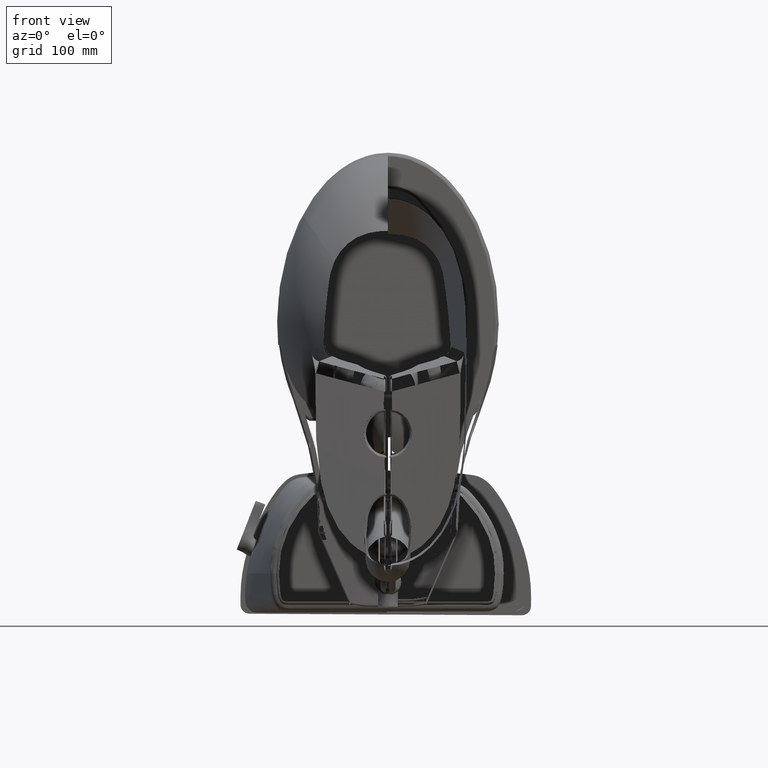
[diagram: clean part render]
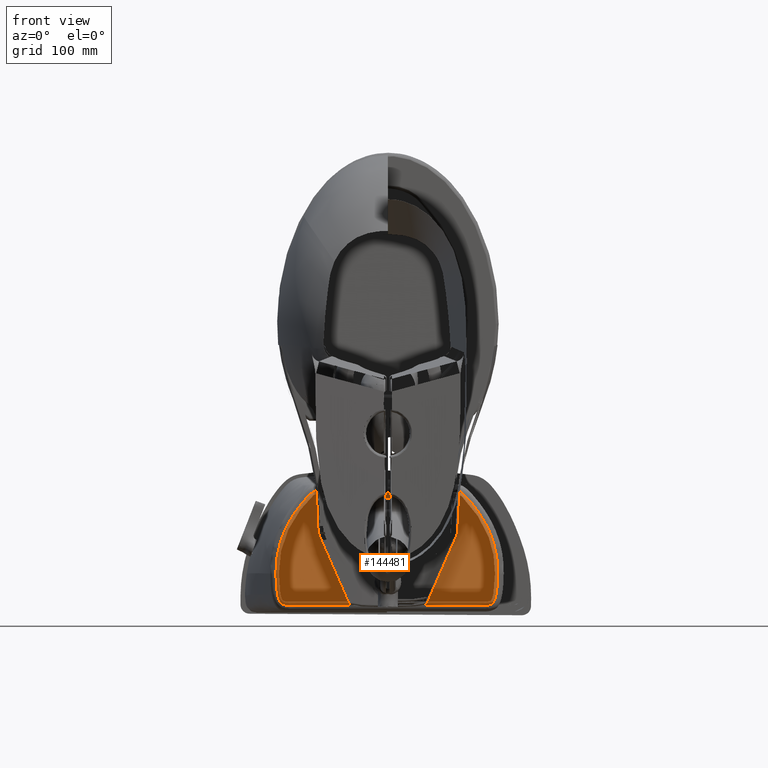
[diagram: same view with one face highlighted and labeled with its STEP entity id]
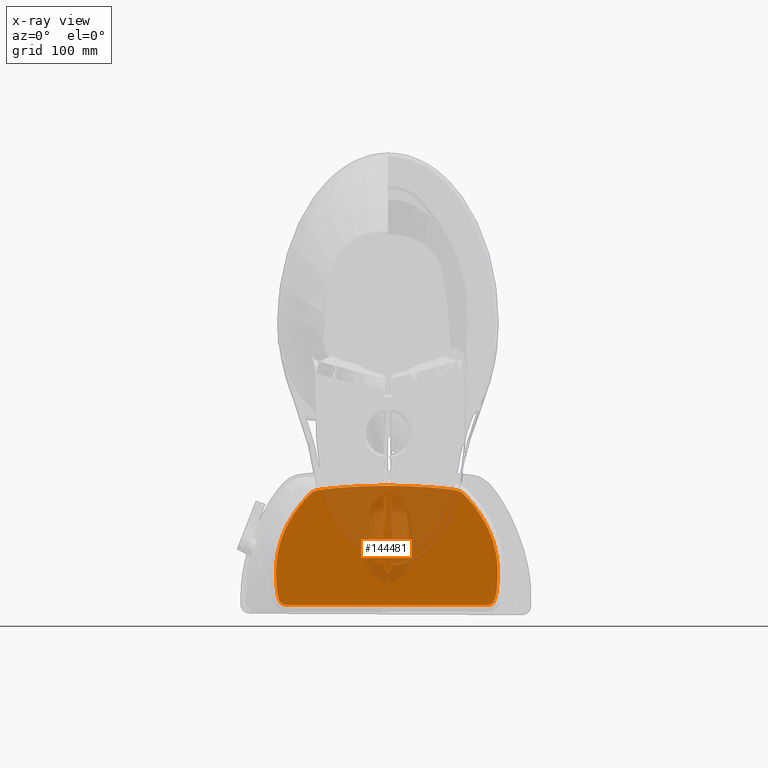
[diagram: x-ray of the same camera — body ghosted, the highlighted face saturated]
A machine part, front view. The second image highlights one B-rep face of the part: STEP entity #144481.
The next image is the same camera in x-ray: the body ghosted, the highlighted face saturated — about 29% of this face is hidden behind the body in this view.
In plain terms, the highlighted planar face has unit normal (0, 1, -0).
Its self-contained STEP definition (entity closure, byte-faithful):
#261 = CARTESIAN_POINT ( 'NONE',  ( 4.823365712351179700, 9.587763995629135400, 17.77141661155866000 ) ) ;
#567 = CARTESIAN_POINT ( 'NONE',  ( -3.905213472220866200, 9.241363815050000600, 17.77141661155866000 ) ) ;
#862 = CARTESIAN_POINT ( 'NONE',  ( 5.275209136908662400, 10.08097412582047300, 17.77141661155866000 ) ) ;
#1738 = VERTEX_POINT ( 'NONE', #199717 ) ;
#1802 = VERTEX_POINT ( 'NONE', #145778 ) ;
#2024 = CARTESIAN_POINT ( 'NONE',  ( 6.641299343237795600, 16.47870515853385600, 17.77141661155866000 ) ) ;
#2755 = CARTESIAN_POINT ( 'NONE',  ( -4.825025579279529400, 9.476046813734253500, 17.77141661155866000 ) ) ;
#3328 = EDGE_CURVE ( 'NONE', #93505, #24891, #201938, .T. ) ;
#3608 = CARTESIAN_POINT ( 'NONE',  ( -2.900141280322834800, 9.148726522938977400, 17.77141661155866000 ) ) ;
#3808 = VERTEX_POINT ( 'NONE', #15834 ) ;
#3928 = CARTESIAN_POINT ( 'NONE',  ( 6.818518673200787600, 16.10676062268464600, 17.77141661155866000 ) ) ;
#4427 = VERTEX_POINT ( 'NONE', #185718 ) ;
#5701 = VERTEX_POINT ( 'NONE', #224883 ) ;
#5831 = CARTESIAN_POINT ( 'NONE',  ( 4.971433335707479800, 9.738095305922048100, 17.77141661155866000 ) ) ;
#6027 = CARTESIAN_POINT ( 'NONE',  ( 6.818518673200787600, 16.10676062268464600, 17.77141661155866000 ) ) ;
#6230 = CARTESIAN_POINT ( 'NONE',  ( 4.317670420274804000, 9.323763440217716100, 17.77141661155866000 ) ) ;
#6797 = ORIENTED_EDGE ( 'NONE', *, *, #119210, .T. ) ;
#7089 = CARTESIAN_POINT ( 'NONE',  ( 5.707813558245669000, 10.63991479318464600, 17.77141661155866000 ) ) ;
#7175 = VERTEX_POINT ( 'NONE', #157408 ) ;
#7665 = B_SPLINE_CURVE_WITH_KNOTS ( 'NONE', 3,
 ( #68787, #125076, #216514, #15608 ),
 .UNSPECIFIED., .F., .F.,
 ( 4, 4 ),
 ( 0.0000000000000000000, 1.000000000000000000 ),
 .UNSPECIFIED. ) ;
#7906 = CARTESIAN_POINT ( 'NONE',  ( 6.089054918176644000, 11.23240381704016100, 17.77141661155866000 ) ) ;
#7955 = CARTESIAN_POINT ( 'NONE',  ( 6.912934888203545300, 15.53852773247532900, 17.77141661155866000 ) ) ;
#8253 = CARTESIAN_POINT ( 'NONE',  ( 6.376808670620207000, 11.79065299285839100, 17.77141661155866000 ) ) ;
#8667 = CARTESIAN_POINT ( 'NONE',  ( 6.211150558545670100, 11.46281540645905700, 17.77141661155866000 ) ) ;
#8724 = CARTESIAN_POINT ( 'NONE',  ( 6.907856453319424400, 15.58725075295262700, 17.77141661155866000 ) ) ;
#8749 = CARTESIAN_POINT ( 'NONE',  ( -6.808920055909449200, 16.44074545566811100, 17.77141661155866000 ) ) ;
#9147 = CARTESIAN_POINT ( 'NONE',  ( -1.782202716162991600, 9.081638456476772700, 17.77141661155866000 ) ) ;
#9299 = ORIENTED_EDGE ( 'NONE', *, *, #151004, .T. ) ;
#9543 = ORIENTED_EDGE ( 'NONE', *, *, #195514, .T. ) ;
#9545 = CARTESIAN_POINT ( 'NONE',  ( -0.5678528487653545800, 9.038247307004725800, 17.77141661155866000 ) ) ;
#9771 = CARTESIAN_POINT ( 'NONE',  ( 6.902641905475593200, 15.63294144225866200, 17.77141661155866000 ) ) ;
#9796 = CARTESIAN_POINT ( 'NONE',  ( -6.902566844582677800, 16.25987227508858300, 17.77141661155866000 ) ) ;
#9853 = VERTEX_POINT ( 'NONE', #135245 ) ;
#9989 = EDGE_CURVE ( 'NONE', #212385, #109326, #184419, .T. ) ;
#10096 = CARTESIAN_POINT ( 'NONE',  ( 4.983171417888058000, 9.750664851504725000, 17.77141661155866000 ) ) ;
#10384 = DIRECTION ( 'NONE',  ( -0.9999999996652538800, 2.587454977741346100E-005, 0.0000000000000000000 ) ) ;
#10473 = CARTESIAN_POINT ( 'NONE',  ( -7.065208584720472200, 15.33028636114803200, 17.77141661155866000 ) ) ;
#10680 = EDGE_CURVE ( 'NONE', #72396, #133653, #27131, .T. ) ;
#10682 = CARTESIAN_POINT ( 'NONE',  ( -6.411440910458004800, 16.60560403258845200, 17.77141661155866000 ) ) ;
#10779 = CARTESIAN_POINT ( 'NONE',  ( -4.548987884603674200, 9.346281559321129300, 17.77141661155866000 ) ) ;
#10870 = CARTESIAN_POINT ( 'NONE',  ( 1.648444780427754900, 9.081638456476772700, 17.77141661155866000 ) ) ;
#11139 = CARTESIAN_POINT ( 'NONE',  ( -5.633746722791338300, 10.36042474277716800, 17.77141661155866000 ) ) ;
#11201 = CARTESIAN_POINT ( 'NONE',  ( -6.570730698153543200, 16.58031942574921300, 17.77141661155866000 ) ) ;
#11279 = B_SPLINE_CURVE_WITH_KNOTS ( 'NONE', 3,
 ( #94791, #186207, #167894, #93975 ),
 .UNSPECIFIED., .F., .F.,
 ( 4, 4 ),
 ( 0.0000000000000000000, 1.000000000000000000 ),
 .UNSPECIFIED. ) ;
#11299 = CARTESIAN_POINT ( 'NONE',  ( 6.675162120177560600, 16.44074545566811100, 17.77141661155866000 ) ) ;
#11679 = B_SPLINE_CURVE_WITH_KNOTS ( 'NONE', 3,
 ( #15321, #103456, #14551, #48772 ),
 .UNSPECIFIED., .F., .F.,
 ( 4, 4 ),
 ( 0.0000000000000000000, 1.000000000000000000 ),
 .UNSPECIFIED. ) ;
#12334 = CARTESIAN_POINT ( 'NONE',  ( 5.033698410372251100, 9.805571921246262000, 17.77141661155866000 ) ) ;
#12375 = VERTEX_POINT ( 'NONE', #2024 ) ;
#12419 = CARTESIAN_POINT ( 'NONE',  ( -7.017009480641734200, 13.45543366944921400, 17.77141661155866000 ) ) ;
#12980 = DIRECTION ( 'NONE',  ( 1.000000000000000000, 0.0000000000000000000, 0.0000000000000000000 ) ) ;
#13724 = CARTESIAN_POINT ( 'NONE',  ( -7.086040173149606300, 14.98600054629488200, 17.77141661155866000 ) ) ;
#13839 = CARTESIAN_POINT ( 'NONE',  ( -3.638812051300787300, 9.211419889240552500, 17.77141661155866000 ) ) ;
#14551 = CARTESIAN_POINT ( 'NONE',  ( 4.667652315450781400, 9.458695271877818600, 17.77141661155866000 ) ) ;
#14570 = CARTESIAN_POINT ( 'NONE',  ( -7.086040173149606300, 14.98600054629488200, 17.77141661155866000 ) ) ;
#14594 = CARTESIAN_POINT ( 'NONE',  ( -1.419890822031889800, 9.065840504146457600, 17.77141661155866000 ) ) ;
#14634 = CARTESIAN_POINT ( 'NONE',  ( 0.2580400491761021800, 9.034502141545933900, 17.77141661155866000 ) ) ;
#14881 = ORIENTED_EDGE ( 'NONE', *, *, #67171, .T. ) ;
#15321 = CARTESIAN_POINT ( 'NONE',  ( 4.622769963661023800, 9.430525276140549800, 17.77141661155866000 ) ) ;
#15465 = VERTEX_POINT ( 'NONE', #133076 ) ;
#15608 = CARTESIAN_POINT ( 'NONE',  ( 4.622769963661023800, 9.430525276140549800, 17.77141661155866000 ) ) ;
#15834 = CARTESIAN_POINT ( 'NONE',  ( -4.685767915645670600, 9.394395861685040900, 17.77141661155866000 ) ) ;
#16395 = B_SPLINE_CURVE_WITH_KNOTS ( 'NONE', 3,
 ( #111577, #38616, #220495, #165612 ),
 .UNSPECIFIED., .F., .F.,
 ( 4, 4 ),
 ( 0.0000000000000000000, 1.000000000000000000 ),
 .UNSPECIFIED. ) ;
#16404 = EDGE_CURVE ( 'NONE', #44516, #9853, #113178, .T. ) ;
#16723 = ORIENTED_EDGE ( 'NONE', *, *, #182201, .T. ) ;
#17577 = CARTESIAN_POINT ( 'NONE',  ( 5.092997823338484100, 9.871071589673263700, 17.77141661155866000 ) ) ;
#17690 = ORIENTED_EDGE ( 'NONE', *, *, #134994, .T. ) ;
#17953 = ORIENTED_EDGE ( 'NONE', *, *, #212484, .T. ) ;
#18091 = CARTESIAN_POINT ( 'NONE',  ( 0.8829269237528352100, 9.050801709671654600, 17.77141661155866000 ) ) ;
#18267 = ORIENTED_EDGE ( 'NONE', *, *, #221672, .T. ) ;
#18555 = EDGE_CURVE ( 'NONE', #189232, #7175, #184506, .T. ) ;
#18993 = ORIENTED_EDGE ( 'NONE', *, *, #9989, .T. ) ;
#19046 = B_SPLINE_CURVE_WITH_KNOTS ( 'NONE', 3,
 ( #9771, #173330, #119289, #120065 ),
 .UNSPECIFIED., .F., .F.,
 ( 4, 4 ),
 ( 0.0000000000000000000, 1.000000000000000000 ),
 .UNSPECIFIED. ) ;
#19151 = B_SPLINE_CURVE_WITH_KNOTS ( 'NONE', 3,
 ( #197578, #123666, #199137, #18091 ),
 .UNSPECIFIED., .F., .F.,
 ( 4, 4 ),
 ( 0.0000000000000000000, 1.000000000000000000 ),
 .UNSPECIFIED. ) ;
#19243 = CARTESIAN_POINT ( 'NONE',  ( -5.633746722791338300, 10.36042474277716800, 17.77141661155866000 ) ) ;
#19745 = B_SPLINE_CURVE_WITH_KNOTS ( 'NONE', 3,
 ( #41334, #153232, #43718, #61143 ),
 .UNSPECIFIED., .F., .F.,
 ( 4, 4 ),
 ( 0.0000000000000000000, 1.000000000000000000 ),
 .UNSPECIFIED. ) ;
#19755 = CARTESIAN_POINT ( 'NONE',  ( -5.169346109062991500, 9.807677198154724600, 17.77141661155866000 ) ) ;
#20006 = CARTESIAN_POINT ( 'NONE',  ( 4.823365712351179700, 9.587763995629135400, 17.77141661155866000 ) ) ;
#20377 = VERTEX_POINT ( 'NONE', #13839 ) ;
#20950 = VERTEX_POINT ( 'NONE', #66046 ) ;
#20999 = B_SPLINE_CURVE_WITH_KNOTS ( 'NONE', 3,
 ( #174273, #229115, #32118, #138518 ),
 .UNSPECIFIED., .F., .F.,
 ( 4, 4 ),
 ( 0.0000000000000000000, 1.000000000000000000 ),
 .UNSPECIFIED. ) ;
#21379 = VERTEX_POINT ( 'NONE', #128776 ) ;
#21897 = CARTESIAN_POINT ( 'NONE',  ( 6.377947126856033900, 16.59305975161706200, 17.77141661155866000 ) ) ;
#21939 = B_SPLINE_CURVE_WITH_KNOTS ( 'NONE', 3,
 ( #130576, #59964, #21897, #98788 ),
 .UNSPECIFIED., .F., .F.,
 ( 4, 4 ),
 ( 0.0000000000000000000, 1.000000000000000000 ),
 .UNSPECIFIED. ) ;
#21965 = VERTEX_POINT ( 'NONE', #96859 ) ;
#22673 = ORIENTED_EDGE ( 'NONE', *, *, #114140, .T. ) ;
#22796 = CARTESIAN_POINT ( 'NONE',  ( -4.825025579279529400, 9.476046813734253500, 17.77141661155866000 ) ) ;
#23704 = CARTESIAN_POINT ( 'NONE',  ( -6.760992371171916200, 16.49194504211102300, 17.77141661155866000 ) ) ;
#23722 = EDGE_CURVE ( 'NONE', #85283, #5701, #174586, .T. ) ;
#24063 = CARTESIAN_POINT ( 'NONE',  ( -0.5678528487653545800, 9.038247307004725800, 17.77141661155866000 ) ) ;
#24275 = EDGE_CURVE ( 'NONE', #233794, #12375, #168641, .T. ) ;
#24436 = CARTESIAN_POINT ( 'NONE',  ( -4.957123648086614800, 9.587763995629135400, 17.77141661155866000 ) ) ;
#24667 = ORIENTED_EDGE ( 'NONE', *, *, #30445, .T. ) ;
#24840 = ORIENTED_EDGE ( 'NONE', *, *, #203622, .T. ) ;
#24889 = CARTESIAN_POINT ( 'NONE',  ( 6.618553267765221000, 12.38212967073858000, 17.77141661155866000 ) ) ;
#24891 = VERTEX_POINT ( 'NONE', #173459 ) ;
#24992 = CARTESIAN_POINT ( 'NONE',  ( -4.866029010623361000, 9.506176956757087700, 17.77141661155866000 ) ) ;
#25715 = CARTESIAN_POINT ( 'NONE',  ( -3.905213472220866200, 9.241363815050000600, 17.77141661155866000 ) ) ;
#25840 = EDGE_CURVE ( 'NONE', #207802, #210651, #130661, .T. ) ;
#25992 = CARTESIAN_POINT ( 'NONE',  ( -6.999659405330710600, 15.89226568989763800, 17.77141661155866000 ) ) ;
#26117 = CARTESIAN_POINT ( 'NONE',  ( 6.952282237414567400, 14.98600054629488200, 17.77141661155866000 ) ) ;
#26674 = ORIENTED_EDGE ( 'NONE', *, *, #96987, .T. ) ;
#26738 = CARTESIAN_POINT ( 'NONE',  ( -6.301410955918635500, 16.61104849794829600, 17.77141661155866000 ) ) ;
#27131 = B_SPLINE_CURVE_WITH_KNOTS ( 'NONE', 3,
 ( #232551, #30933, #33215, #160232 ),
 .UNSPECIFIED., .F., .F.,
 ( 4, 4 ),
 ( 0.0000000000000000000, 1.000000000000000000 ),
 .UNSPECIFIED. ) ;
#27246 = EDGE_CURVE ( 'NONE', #12375, #123478, #197987, .T. ) ;
#27366 = CARTESIAN_POINT ( 'NONE',  ( -6.835640664922571800, 16.40233198176916200, 17.77141661155866000 ) ) ;
#27537 = CARTESIAN_POINT ( 'NONE',  ( 1.415295511732316300, 9.071075289708398200, 17.77141661155866000 ) ) ;
#27572 = CARTESIAN_POINT ( 'NONE',  ( 3.889545680085474600, 9.256319268520472900, 17.77141661155866000 ) ) ;
#27807 = CARTESIAN_POINT ( 'NONE',  ( -6.798086654248031400, 16.45499888939304600, 17.77141661155866000 ) ) ;
#28065 = VERTEX_POINT ( 'NONE', #105044 ) ;
#28179 = CARTESIAN_POINT ( 'NONE',  ( 6.277694148247375600, 16.60560246793123400, 17.77141661155866000 ) ) ;
#28197 = CARTESIAN_POINT ( 'NONE',  ( 6.803520218762992400, 16.16161393929357000, 17.77141661155866000 ) ) ;
#28954 = CARTESIAN_POINT ( 'NONE',  ( -6.477887079377953100, 16.59780209968267800, 17.77141661155866000 ) ) ;
#29019 = EDGE_CURVE ( 'NONE', #126009, #142059, #209634, .T. ) ;
#29630 = B_SPLINE_CURVE_WITH_KNOTS ( 'NONE', 3,
 ( #261, #90666, #111300, #164538 ),
 .UNSPECIFIED., .F., .F.,
 ( 4, 4 ),
 ( 0.0000000000000000000, 1.000000000000000000 ),
 .UNSPECIFIED. ) ;
#30265 = VERTEX_POINT ( 'NONE', #177341 ) ;
#30445 = EDGE_CURVE ( 'NONE', #133653, #183467, #187797, .T. ) ;
#30692 = CARTESIAN_POINT ( 'NONE',  ( -7.065256571560365900, 13.80659268323961400, 17.77141661155866000 ) ) ;
#30740 = EDGE_CURVE ( 'NONE', #1738, #79569, #11679, .T. ) ;
#30933 = CARTESIAN_POINT ( 'NONE',  ( -5.223750038753310700, 9.867690723446488100, 17.77141661155866000 ) ) ;
#31356 = CARTESIAN_POINT ( 'NONE',  ( -4.451428341775591800, 9.323763440217716100, 17.77141661155866000 ) ) ;
#31438 = ORIENTED_EDGE ( 'NONE', *, *, #10680, .T. ) ;
#31516 = B_SPLINE_CURVE_WITH_KNOTS ( 'NONE', 3,
 ( #9796, #190096, #81174, #172585 ),
 .UNSPECIFIED., .F., .F.,
 ( 4, 4 ),
 ( 0.0000000000000000000, 1.000000000000000000 ),
 .UNSPECIFIED. ) ;
#31532 = EDGE_CURVE ( 'NONE', #76728, #35796, #103268, .T. ) ;
#31878 = CARTESIAN_POINT ( 'NONE',  ( 6.641299343237795600, 16.47870515853385600, 17.77141661155866000 ) ) ;
#32118 = CARTESIAN_POINT ( 'NONE',  ( -1.986409894486562900, 9.091264345021389900, 17.77141661155866000 ) ) ;
#32149 = ORIENTED_EDGE ( 'NONE', *, *, #129264, .T. ) ;
#32894 = VERTEX_POINT ( 'NONE', #216520 ) ;
#32987 = EDGE_CURVE ( 'NONE', #15465, #96653, #199486, .T. ) ;
#33215 = CARTESIAN_POINT ( 'NONE',  ( -5.196755770955409300, 9.837721499789665800, 17.77141661155866000 ) ) ;
#33768 = EDGE_CURVE ( 'NONE', #49290, #88792, #224253, .T. ) ;
#33792 = CARTESIAN_POINT ( 'NONE',  ( -7.051635131625986700, 15.48677238082677300, 17.77141661155866000 ) ) ;
#33920 = CARTESIAN_POINT ( 'NONE',  ( -4.685767915645670600, 9.394395861685040900, 17.77141661155866000 ) ) ;
#34141 = CARTESIAN_POINT ( 'NONE',  ( -6.952276608933071400, 16.10676062268464600, 17.77141661155866000 ) ) ;
#34331 = CARTESIAN_POINT ( 'NONE',  ( -6.904623323141733800, 12.87705384707245000, 17.77141661155866000 ) ) ;
#34682 = VERTEX_POINT ( 'NONE', #110227 ) ;
#34707 = CARTESIAN_POINT ( 'NONE',  ( -4.024228271086613500, 9.256442462263386500, 17.77141661155866000 ) ) ;
#34848 = EDGE_CURVE ( 'NONE', #47441, #54708, #212524, .T. ) ;
#34856 = B_SPLINE_CURVE_WITH_KNOTS ( 'NONE', 3,
 ( #170153, #152687, #24889, #80343 ),
 .UNSPECIFIED., .F., .F.,
 ( 4, 4 ),
 ( 0.0000000000000000000, 1.000000000000000000 ),
 .UNSPECIFIED. ) ;
#35020 = CARTESIAN_POINT ( 'NONE',  ( 2.438117207472211500, 9.125786598338715200, 17.77141661155866000 ) ) ;
#35104 = CARTESIAN_POINT ( 'NONE',  ( -6.260200107448818900, 16.61129030474803500, 17.77141661155866000 ) ) ;
#35540 = EDGE_LOOP ( 'NONE', ( #41083, #108664, #52132, #183898, #140420, #133006, #170388, #49513, #18993, #113137, #87811, #153843, #115546, #72731, #45594, #120229, #150740, #128413, #120722, #178196, #199128, #136856, #9299, #213745, #177660, #98234, #144859, #31438, #24667, #160287, #17690, #92214, #106607, #6797, #138213, #121694, #157354, #63632, #204935, #69041, #119308, #16723, #144436, #125153, #132856, #26674, #193010, #200420, #32149, #49963, #61786, #234718, #111001, #42051, #24840, #186266, #102200, #50259, #9543, #179363, #163337, #154704, #210367, #120906, #22673, #182096, #129336, #38332, #226981, #119299, #108456, #159196, #122771, #167369, #18267, #48659, #107406, #89275, #35785, #90848, #84264, #216939, #131700, #173566, #137478, #35570, #143775, #90630, #167885, #187727, #17953, #14881, #166164, #136223 ) ) ;
#35570 = ORIENTED_EDGE ( 'NONE', *, *, #216787, .T. ) ;
#35607 = CARTESIAN_POINT ( 'NONE',  ( 6.947019588859974200, 15.10503047051800100, 17.77141661155866000 ) ) ;
#35722 = VERTEX_POINT ( 'NONE', #79468 ) ;
#35785 = ORIENTED_EDGE ( 'NONE', *, *, #25840, .T. ) ;
#35796 = VERTEX_POINT ( 'NONE', #10473 ) ;
#36470 = CARTESIAN_POINT ( 'NONE',  ( 4.552009979913779400, 9.394395861685040900, 17.77141661155866000 ) ) ;
#36528 = EDGE_CURVE ( 'NONE', #83649, #119529, #142418, .T. ) ;
#36891 = CARTESIAN_POINT ( 'NONE',  ( 6.944951296258661700, 13.98483731902126200, 17.77141661155866000 ) ) ;
#36915 = CARTESIAN_POINT ( 'NONE',  ( -5.169346109062991500, 9.807677198154724600, 17.77141661155866000 ) ) ;
#37015 = VERTEX_POINT ( 'NONE', #184889 ) ;
#37172 = CARTESIAN_POINT ( 'NONE',  ( -2.571908535671457100, 9.125788853285964600, 17.77141661155866000 ) ) ;
#37448 = CARTESIAN_POINT ( 'NONE',  ( 5.499988801292520400, 10.36042474277716800, 17.77141661155866000 ) ) ;
#37611 = CARTESIAN_POINT ( 'NONE',  ( -1.016684859487795500, 9.050801709671656400, 17.77141661155866000 ) ) ;
#37821 = CARTESIAN_POINT ( 'NONE',  ( -3.943261390553931500, 9.246022474409580000, 17.77141661155866000 ) ) ;
#38287 = CARTESIAN_POINT ( 'NONE',  ( -7.036399841208662100, 15.63294144225866100, 17.77141661155866000 ) ) ;
#38332 = ORIENTED_EDGE ( 'NONE', *, *, #156547, .T. ) ;
#38523 = CARTESIAN_POINT ( 'NONE',  ( -5.086331973464568000, 9.717986538998031800, 17.77141661155866000 ) ) ;
#38616 = CARTESIAN_POINT ( 'NONE',  ( 3.810506315257097500, 9.246148613389504300, 17.77141661155866000 ) ) ;
#39092 = CARTESIAN_POINT ( 'NONE',  ( 6.126442175854329300, 16.61129030446338800, 17.77141661155866000 ) ) ;
#39363 = CARTESIAN_POINT ( 'NONE',  ( 5.116570976724016600, 9.897584869125196900, 17.77141661155866000 ) ) ;
#39816 = B_SPLINE_CURVE_WITH_KNOTS ( 'NONE', 3,
 ( #101207, #119499, #12334, #229155 ),
 .UNSPECIFIED., .F., .F.,
 ( 4, 4 ),
 ( 0.0000000000000000000, 1.000000000000000000 ),
 .UNSPECIFIED. ) ;
#40195 = CARTESIAN_POINT ( 'NONE',  ( -6.819119389811022300, 12.59921390917637900, 17.77141661155866000 ) ) ;
#40518 = CARTESIAN_POINT ( 'NONE',  ( 6.240119531796456600, 16.60784023448661600, 17.77141661155866000 ) ) ;
#40770 = B_SPLINE_CURVE_WITH_KNOTS ( 'NONE', 3,
 ( #220878, #57233, #111943, #74627 ),
 .UNSPECIFIED., .F., .F.,
 ( 4, 4 ),
 ( 0.0000000000000000000, 1.000000000000000000 ),
 .UNSPECIFIED. ) ;
#40953 = CARTESIAN_POINT ( 'NONE',  ( 6.205560921948425300, 16.60989838248924100, 17.77141661155866000 ) ) ;
#41066 = CARTESIAN_POINT ( 'NONE',  ( -4.359943921547228200, 9.305731134432411600, 17.77141661155866000 ) ) ;
#41083 = ORIENTED_EDGE ( 'NONE', *, *, #29019, .T. ) ;
#41176 = CARTESIAN_POINT ( 'NONE',  ( -5.633746722791338300, 10.36042474277716800, 17.77141661155866000 ) ) ;
#41334 = CARTESIAN_POINT ( 'NONE',  ( -4.131580445818896900, 9.270846634855905300, 17.77141661155866000 ) ) ;
#41973 = CARTESIAN_POINT ( 'NONE',  ( -6.775057278972441000, 16.47870515853385600, 17.77141661155866000 ) ) ;
#42051 = ORIENTED_EDGE ( 'NONE', *, *, #194538, .T. ) ;
#42097 = VERTEX_POINT ( 'NONE', #36891 ) ;
#42233 = EDGE_CURVE ( 'NONE', #72850, #221344, #11279, .T. ) ;
#42690 = CARTESIAN_POINT ( 'NONE',  ( -6.639352397023621700, 16.55936513035944900, 17.77141661155866000 ) ) ;
#42957 = CARTESIAN_POINT ( 'NONE',  ( 6.593879624398425700, 16.51569197444173300, 17.77141661155866000 ) ) ;
#42993 = CARTESIAN_POINT ( 'NONE',  ( 4.455044512649212000, 9.358601536971260500, 17.77141661155866000 ) ) ;
#43248 = EDGE_CURVE ( 'NONE', #35796, #67243, #195965, .T. ) ;
#43609 = CARTESIAN_POINT ( 'NONE',  ( 6.505594461291338800, 16.55936513035944900, 17.77141661155866000 ) ) ;
#43619 = CARTESIAN_POINT ( 'NONE',  ( 5.804354094779527400, 10.78381894177047300, 17.77141661155866000 ) ) ;
#43718 = CARTESIAN_POINT ( 'NONE',  ( -4.060458183729658700, 9.261174624717455100, 17.77141661155866000 ) ) ;
#44458 = CARTESIAN_POINT ( 'NONE',  ( 5.116570976724016600, 9.897584869125196900, 17.77141661155866000 ) ) ;
#44508 = CARTESIAN_POINT ( 'NONE',  ( -5.250328912456694800, 9.897584869125196900, 17.77141661155866000 ) ) ;
#44516 = VERTEX_POINT ( 'NONE', #78090 ) ;
#44586 = CARTESIAN_POINT ( 'NONE',  ( -0.06687965658181123400, 16.61113005536968900, 17.77141661155866000 ) ) ;
#45274 = EDGE_CURVE ( 'NONE', #123478, #87367, #81040, .T. ) ;
#45594 = ORIENTED_EDGE ( 'NONE', *, *, #138978, .T. ) ;
#45654 = B_SPLINE_CURVE_WITH_KNOTS ( 'NONE', 3,
 ( #50358, #194948, #14634, #141647 ),
 .UNSPECIFIED., .F., .F.,
 ( 4, 4 ),
 ( 0.0000000000000000000, 1.000000000000000000 ),
 .UNSPECIFIED. ) ;
#45672 = CARTESIAN_POINT ( 'NONE',  ( -6.848593135846456000, 16.37877584301850600, 17.77141661155866000 ) ) ;
#45675 = CARTESIAN_POINT ( 'NONE',  ( 6.240119531796456600, 16.60784023448661600, 17.77141661155866000 ) ) ;
#46567 = CARTESIAN_POINT ( 'NONE',  ( -4.778600541195525700, 9.443536740223217800, 17.77141661155866000 ) ) ;
#47198 = CARTESIAN_POINT ( 'NONE',  ( 6.944951296258661700, 13.98483731902126200, 17.77141661155866000 ) ) ;
#47441 = VERTEX_POINT ( 'NONE', #190836 ) ;
#47783 = B_SPLINE_CURVE_WITH_KNOTS ( 'NONE', 3,
 ( #162352, #40953, #182204, #200481 ),
 .UNSPECIFIED., .F., .F.,
 ( 4, 4 ),
 ( 0.0000000000000000000, 1.000000000000000000 ),
 .UNSPECIFIED. ) ;
#48051 = B_SPLINE_CURVE_WITH_KNOTS ( 'NONE', 3,
 ( #11201, #193824, #169671, #42690 ),
 .UNSPECIFIED., .F., .F.,
 ( 4, 4 ),
 ( 0.0000000000000000000, 1.000000000000000000 ),
 .UNSPECIFIED. ) ;
#48279 = EDGE_CURVE ( 'NONE', #24891, #177531, #220703, .T. ) ;
#48659 = ORIENTED_EDGE ( 'NONE', *, *, #157860, .T. ) ;
#48772 = CARTESIAN_POINT ( 'NONE',  ( 4.691267657780708000, 9.476046813734251700, 17.77141661155866000 ) ) ;
#48832 = EDGE_CURVE ( 'NONE', #158697, #93505, #228024, .T. ) ;
#48872 = CARTESIAN_POINT ( 'NONE',  ( -5.086331973464568000, 9.717986538998031800, 17.77141661155866000 ) ) ;
#49290 = VERTEX_POINT ( 'NONE', #129496 ) ;
#49513 = ORIENTED_EDGE ( 'NONE', *, *, #156022, .T. ) ;
#49704 = CARTESIAN_POINT ( 'NONE',  ( -7.036399841208662100, 15.63294144225866100, 17.77141661155866000 ) ) ;
#49740 = CARTESIAN_POINT ( 'NONE',  ( 6.505594461291338800, 16.55936513035944900, 17.77141661155866000 ) ) ;
#49885 = B_SPLINE_CURVE_WITH_KNOTS ( 'NONE', 3,
 ( #74534, #110031, #203015, #59246 ),
 .UNSPECIFIED., .F., .F.,
 ( 4, 4 ),
 ( 0.0000000000000000000, 1.000000000000000000 ),
 .UNSPECIFIED. ) ;
#49901 = CARTESIAN_POINT ( 'NONE',  ( 6.931495452203019900, 13.80656506141602000, 17.77141661155866000 ) ) ;
#49963 = ORIENTED_EDGE ( 'NONE', *, *, #168801, .T. ) ;
#50259 = ORIENTED_EDGE ( 'NONE', *, *, #32987, .T. ) ;
#50358 = CARTESIAN_POINT ( 'NONE',  ( -0.06687896075074786800, 9.032349485181891100, 17.77141661155866000 ) ) ;
#50540 = CARTESIAN_POINT ( 'NONE',  ( 6.883251544909448700, 13.45543366944921400, 17.77141661155866000 ) ) ;
#50794 = CARTESIAN_POINT ( 'NONE',  ( 5.009873257278346900, 9.779597315932676300, 17.77141661155866000 ) ) ;
#50952 = CARTESIAN_POINT ( 'NONE',  ( -7.065208584720472200, 15.33028636114803200, 17.77141661155866000 ) ) ;
#52132 = ORIENTED_EDGE ( 'NONE', *, *, #178185, .T. ) ;
#52147 = CARTESIAN_POINT ( 'NONE',  ( 6.675162120177560600, 16.44074545566811100, 17.77141661155866000 ) ) ;
#54449 = VERTEX_POINT ( 'NONE', #172944 ) ;
#54708 = VERTEX_POINT ( 'NONE', #25715 ) ;
#54838 = CARTESIAN_POINT ( 'NONE',  ( -1.016684859487795500, 9.050801709671656400, 17.77141661155866000 ) ) ;
#55963 = CARTESIAN_POINT ( 'NONE',  ( -5.138372743425196500, 9.773726648070473600, 17.77141661155866000 ) ) ;
#56679 = CARTESIAN_POINT ( 'NONE',  ( 4.691267657780708000, 9.476046813734251700, 17.77141661155866000 ) ) ;
#57234 = B_SPLINE_CURVE_WITH_KNOTS ( 'NONE', 3,
 ( #149924, #115727, #23704, #41973 ),
 .UNSPECIFIED., .F., .F.,
 ( 4, 4 ),
 ( 0.0000000000000000000, 1.000000000000000000 ),
 .UNSPECIFIED. ) ;
#57233 = CARTESIAN_POINT ( 'NONE',  ( 1.852622191158414400, 9.091262759911154800, 17.77141661155866000 ) ) ;
#58421 = CARTESIAN_POINT ( 'NONE',  ( -6.673015170279526800, 12.16721342077099700, 17.77141661155866000 ) ) ;
#58485 = B_SPLINE_CURVE_WITH_KNOTS ( 'NONE', 3,
 ( #213331, #104366, #8253, #117735 ),
 .UNSPECIFIED., .F., .F.,
 ( 4, 4 ),
 ( 0.0000000000000000000, 1.000000000000000000 ),
 .UNSPECIFIED. ) ;
#59246 = CARTESIAN_POINT ( 'NONE',  ( 4.455044512649212000, 9.358601536971260500, 17.77141661155866000 ) ) ;
#59272 = CARTESIAN_POINT ( 'NONE',  ( -6.510579032450127800, 11.79067899889225000, 17.77141661155866000 ) ) ;
#59457 = B_SPLINE_CURVE_WITH_KNOTS ( 'NONE', 3,
 ( #143774, #35020, #195523, #213835 ),
 .UNSPECIFIED., .F., .F.,
 ( 4, 4 ),
 ( 0.0000000000000000000, 1.000000000000000000 ),
 .UNSPECIFIED. ) ;
#59943 = B_SPLINE_CURVE_WITH_KNOTS ( 'NONE', 3,
 ( #64624, #10682, #137638, #28954 ),
 .UNSPECIFIED., .F., .F.,
 ( 4, 4 ),
 ( 0.0000000000000000000, 1.000000000000000000 ),
 .UNSPECIFIED. ) ;
#59964 = CARTESIAN_POINT ( 'NONE',  ( 6.408894995036873400, 16.58723219363924200, 17.77141661155866000 ) ) ;
#60002 = CARTESIAN_POINT ( 'NONE',  ( -6.727637560129921600, 16.51569197444173300, 17.77141661155866000 ) ) ;
#60203 = CARTESIAN_POINT ( 'NONE',  ( -1.016684859487795500, 9.050801709671656400, 17.77141661155866000 ) ) ;
#60218 = B_SPLINE_CURVE_WITH_KNOTS ( 'NONE', 3,
 ( #117819, #136118, #27366, #45672 ),
 .UNSPECIFIED., .F., .F.,
 ( 4, 4 ),
 ( 0.0000000000000000000, 1.000000000000000000 ),
 .UNSPECIFIED. ) ;
#60455 = CARTESIAN_POINT ( 'NONE',  ( -5.086331973464568000, 9.717986538998031800, 17.77141661155866000 ) ) ;
#60612 = B_SPLINE_CURVE_WITH_KNOTS ( 'NONE', 3,
 ( #197686, #234998, #37172, #215971 ),
 .UNSPECIFIED., .F., .F.,
 ( 4, 4 ),
 ( 0.0000000000000000000, 1.000000000000000000 ),
 .UNSPECIFIED. ) ;
#60883 = CARTESIAN_POINT ( 'NONE',  ( -6.339303404534120100, 16.60989847452782400, 17.77141661155866000 ) ) ;
#61143 = CARTESIAN_POINT ( 'NONE',  ( -4.024228271086613500, 9.256442462263386500, 17.77141661155866000 ) ) ;
#61429 = CARTESIAN_POINT ( 'NONE',  ( 4.317670420274804000, 9.323763440217716100, 17.77141661155866000 ) ) ;
#61786 = ORIENTED_EDGE ( 'NONE', *, *, #214984, .T. ) ;
#61837 = CARTESIAN_POINT ( 'NONE',  ( 6.461352914589372000, 16.57431701221876700, 17.77141661155866000 ) ) ;
#62199 = CARTESIAN_POINT ( 'NONE',  ( -5.938112030511812000, 10.78381894177047300, 17.77141661155866000 ) ) ;
#62254 = CARTESIAN_POINT ( 'NONE',  ( 3.505054115565671100, 9.211419889240552500, 17.77141661155866000 ) ) ;
#62397 = CARTESIAN_POINT ( 'NONE',  ( 6.611452505922309300, 16.50425484693281000, 17.77141661155866000 ) ) ;
#62492 = CARTESIAN_POINT ( 'NONE',  ( -2.400176311593700300, 9.115233440774410700, 17.77141661155866000 ) ) ;
#62762 = CARTESIAN_POINT ( 'NONE',  ( -7.036399841208662100, 15.63294144225866100, 17.77141661155866000 ) ) ;
#63381 = EDGE_CURVE ( 'NONE', #235722, #34682, #195132, .T. ) ;
#63632 = ORIENTED_EDGE ( 'NONE', *, *, #184730, .T. ) ;
#63839 = CARTESIAN_POINT ( 'NONE',  ( 6.312364023607743000, 16.60225642299658900, 17.77141661155866000 ) ) ;
#63924 = CARTESIAN_POINT ( 'NONE',  ( 6.675162120177560600, 16.44074545566811100, 17.77141661155866000 ) ) ;
#63978 = CARTESIAN_POINT ( 'NONE',  ( -4.685767915645670600, 9.394395861685040900, 17.77141661155866000 ) ) ;
#64624 = CARTESIAN_POINT ( 'NONE',  ( -6.373877453295275300, 16.60784023448661600, 17.77141661155866000 ) ) ;
#65384 = CARTESIAN_POINT ( 'NONE',  ( 6.960196659453938400, 14.18681832569764000, 17.77141661155866000 ) ) ;
#65492 = B_SPLINE_CURVE_WITH_KNOTS ( 'NONE', 3,
 ( #192722, #27537, #211070, #10870 ),
 .UNSPECIFIED., .F., .F.,
 ( 4, 4 ),
 ( 0.0000000000000000000, 1.000000000000000000 ),
 .UNSPECIFIED. ) ;
#65505 = CARTESIAN_POINT ( 'NONE',  ( -4.588802434149606300, 9.358601536971260500, 17.77141661155866000 ) ) ;
#65529 = VECTOR ( 'NONE', #10384, 39.37007874015748900 ) ;
#65568 = CARTESIAN_POINT ( 'NONE',  ( -4.710710273931774800, 9.405377351820742900, 17.77141661155866000 ) ) ;
#65812 = CARTESIAN_POINT ( 'NONE',  ( -6.952276608933071400, 16.10676062268464600, 17.77141661155866000 ) ) ;
#66046 = CARTESIAN_POINT ( 'NONE',  ( -4.588802434149606300, 9.358601536971260500, 17.77141661155866000 ) ) ;
#66167 = PLANE ( 'NONE',  #163844 ) ;
#66353 = CARTESIAN_POINT ( 'NONE',  ( -0.06687974093354719100, 16.61113005536968900, 17.77141661155866000 ) ) ;
#66604 = VERTEX_POINT ( 'NONE', #38287 ) ;
#66704 = CARTESIAN_POINT ( 'NONE',  ( -4.257360667998721500, 9.288836160562077300, 17.77141661155866000 ) ) ;
#66792 = CARTESIAN_POINT ( 'NONE',  ( 6.653058728652758300, 16.46763215640629600, 17.77141661155866000 ) ) ;
#67171 = EDGE_CURVE ( 'NONE', #112124, #189447, #21939, .T. ) ;
#67203 = CARTESIAN_POINT ( 'NONE',  ( 6.538657517656693200, 16.54703727829094400, 17.77141661155866000 ) ) ;
#67243 = VERTEX_POINT ( 'NONE', #14570 ) ;
#67415 = CARTESIAN_POINT ( 'NONE',  ( -5.841587179611548400, 10.63993660634658800, 17.77141661155866000 ) ) ;
#67668 = CARTESIAN_POINT ( 'NONE',  ( -3.192021317451706700, 9.169994268759188200, 17.77141661155866000 ) ) ;
#68770 = B_SPLINE_CURVE_WITH_KNOTS ( 'NONE', 3,
 ( #226730, #63839, #28179, #45675 ),
 .UNSPECIFIED., .F., .F.,
 ( 4, 4 ),
 ( 0.0000000000000000000, 1.000000000000000000 ),
 .UNSPECIFIED. ) ;
#68787 = CARTESIAN_POINT ( 'NONE',  ( 4.552009979913779400, 9.394395861685040900, 17.77141661155866000 ) ) ;
#69041 = ORIENTED_EDGE ( 'NONE', *, *, #197702, .T. ) ;
#69314 = CARTESIAN_POINT ( 'NONE',  ( 6.447445584301576100, 11.95438977961299200, 17.77141661155866000 ) ) ;
#69870 = B_SPLINE_CURVE_WITH_KNOTS ( 'NONE', 3,
 ( #134349, #98604, #223389, #170118 ),
 .UNSPECIFIED., .F., .F.,
 ( 4, 4 ),
 ( 0.0000000000000000000, 1.000000000000000000 ),
 .UNSPECIFIED. ) ;
#70584 = EDGE_CURVE ( 'NONE', #211008, #66604, #100401, .T. ) ;
#70874 = EDGE_CURVE ( 'NONE', #79569, #201550, #184875, .T. ) ;
#71017 = CARTESIAN_POINT ( 'NONE',  ( -7.065208584720472200, 15.33028636114803200, 17.77141661155866000 ) ) ;
#71497 = CARTESIAN_POINT ( 'NONE',  ( 5.069333037577329100, 9.844754194050299400, 17.77141661155866000 ) ) ;
#71522 = B_SPLINE_CURVE_WITH_KNOTS ( 'NONE', 3,
 ( #141822, #204513, #170244, #62254 ),
 .UNSPECIFIED., .F., .F.,
 ( 4, 4 ),
 ( 0.0000000000000000000, 1.000000000000000000 ),
 .UNSPECIFIED. ) ;
#71579 = CARTESIAN_POINT ( 'NONE',  ( -6.819119389811022300, 12.59921390917637900, 17.77141661155866000 ) ) ;
#71601 = CARTESIAN_POINT ( 'NONE',  ( 5.352500194155118700, 10.17289061207349100, 17.77141661155866000 ) ) ;
#72174 = EDGE_CURVE ( 'NONE', #20950, #94123, #146872, .T. ) ;
#72396 = VERTEX_POINT ( 'NONE', #44508 ) ;
#72731 = ORIENTED_EDGE ( 'NONE', *, *, #70584, .T. ) ;
#72850 = VERTEX_POINT ( 'NONE', #162277 ) ;
#73327 = CARTESIAN_POINT ( 'NONE',  ( 4.732250516556820900, 9.506159280221652400, 17.77141661155866000 ) ) ;
#73355 = CARTESIAN_POINT ( 'NONE',  ( -6.344908494279527700, 11.46281540645905700, 17.77141661155866000 ) ) ;
#74259 = CARTESIAN_POINT ( 'NONE',  ( 6.836822602022047100, 13.16243406475472500, 17.77141661155866000 ) ) ;
#74534 = CARTESIAN_POINT ( 'NONE',  ( 4.317670420274804000, 9.323763440217716100, 17.77141661155866000 ) ) ;
#74627 = CARTESIAN_POINT ( 'NONE',  ( 2.266418375858582700, 9.115233440774410700, 17.77141661155866000 ) ) ;
#75156 = VERTEX_POINT ( 'NONE', #212890 ) ;
#76728 = VERTEX_POINT ( 'NONE', #82604 ) ;
#77568 = CARTESIAN_POINT ( 'NONE',  ( -5.561201352447507200, 10.26606153665013100, 17.77141661155866000 ) ) ;
#77707 = CARTESIAN_POINT ( 'NONE',  ( 6.917877210127953100, 15.48677238082677300, 17.77141661155866000 ) ) ;
#77789 = CARTESIAN_POINT ( 'NONE',  ( 4.522483497696452300, 9.381397973304460800, 17.77141661155866000 ) ) ;
#78067 = CARTESIAN_POINT ( 'NONE',  ( -4.910061700225723400, 9.543416017388715000, 17.77141661155866000 ) ) ;
#78090 = CARTESIAN_POINT ( 'NONE',  ( -6.848593135846456000, 16.37877584301850600, 17.77141661155866000 ) ) ;
#78146 = VERTEX_POINT ( 'NONE', #222166 ) ;
#78600 = CARTESIAN_POINT ( 'NONE',  ( -6.848593135846456000, 16.37877584301850600, 17.77141661155866000 ) ) ;
#78935 = CARTESIAN_POINT ( 'NONE',  ( -1.669851991300522800, 9.076342485660761700, 17.77141661155866000 ) ) ;
#79042 = CARTESIAN_POINT ( 'NONE',  ( -4.451428341775591800, 9.323763440217716100, 17.77141661155866000 ) ) ;
#79468 = CARTESIAN_POINT ( 'NONE',  ( -6.819119389811022300, 12.59921390917637900, 17.77141661155866000 ) ) ;
#79569 = VERTEX_POINT ( 'NONE', #187414 ) ;
#80326 = VERTEX_POINT ( 'NONE', #84076 ) ;
#80343 = CARTESIAN_POINT ( 'NONE',  ( 6.685361454076771200, 12.59921390917637900, 17.77141661155866000 ) ) ;
#80967 = CARTESIAN_POINT ( 'NONE',  ( -6.884928933629921300, 16.30577881549934500, 17.77141661155866000 ) ) ;
#81040 = B_SPLINE_CURVE_WITH_KNOTS ( 'NONE', 3,
 ( #133968, #85380, #67203, #49740 ),
 .UNSPECIFIED., .F., .F.,
 ( 4, 4 ),
 ( 0.0000000000000000000, 1.000000000000000000 ),
 .UNSPECIFIED. ) ;
#81174 = CARTESIAN_POINT ( 'NONE',  ( -6.937269766051181300, 16.16163992998779600, 17.77141661155866000 ) ) ;
#81241 = CARTESIAN_POINT ( 'NONE',  ( -7.078709217759842100, 13.98483731902126000, 17.77141661155866000 ) ) ;
#81242 = CARTESIAN_POINT ( 'NONE',  ( 1.010307436362545900, 9.055095870382153600, 17.77141661155866000 ) ) ;
#81959 = B_SPLINE_CURVE_WITH_KNOTS ( 'NONE', 3,
 ( #201449, #186327, #74259, #222069 ),
 .UNSPECIFIED., .F., .F.,
 ( 4, 4 ),
 ( 0.0000000000000000000, 1.000000000000000000 ),
 .UNSPECIFIED. ) ;
#82172 = EDGE_CURVE ( 'NONE', #119529, #167150, #96273, .T. ) ;
#82604 = CARTESIAN_POINT ( 'NONE',  ( -7.051635131625986700, 15.48677238082677300, 17.77141661155866000 ) ) ;
#82650 = CARTESIAN_POINT ( 'NONE',  ( 6.818518673200787600, 16.10676062268464600, 17.77141661155866000 ) ) ;
#83590 = DIRECTION ( 'NONE',  ( -0.9999999996652551000, -2.587449804506025100E-005, 0.0000000000000000000 ) ) ;
#83649 = VERTEX_POINT ( 'NONE', #73355 ) ;
#84027 = CARTESIAN_POINT ( 'NONE',  ( 6.917877210127953100, 15.48677238082677300, 17.77141661155866000 ) ) ;
#84076 = CARTESIAN_POINT ( 'NONE',  ( 1.286132900530669400, 9.065840504146457600, 17.77141661155866000 ) ) ;
#84264 = ORIENTED_EDGE ( 'NONE', *, *, #18555, .T. ) ;
#84872 = CARTESIAN_POINT ( 'NONE',  ( -7.051635131625986700, 15.48677238082677300, 17.77141661155866000 ) ) ;
#85283 = VERTEX_POINT ( 'NONE', #147178 ) ;
#85380 = CARTESIAN_POINT ( 'NONE',  ( 6.568085905359055200, 16.53247955965170500, 17.77141661155866000 ) ) ;
#86018 = CARTESIAN_POINT ( 'NONE',  ( -4.503196520479002100, 9.334668860403281700, 17.77141661155866000 ) ) ;
#86457 = EDGE_CURVE ( 'NONE', #184764, #37015, #144141, .T. ) ;
#86631 = CARTESIAN_POINT ( 'NONE',  ( -2.900141280322834800, 9.148726522938977400, 17.77141661155866000 ) ) ;
#86862 = VERTEX_POINT ( 'NONE', #36470 ) ;
#87367 = VERTEX_POINT ( 'NONE', #138619 ) ;
#87558 = CARTESIAN_POINT ( 'NONE',  ( -6.570730698153543200, 16.58031942574921300, 17.77141661155866000 ) ) ;
#87811 = ORIENTED_EDGE ( 'NONE', *, *, #16404, .T. ) ;
#88017 = CARTESIAN_POINT ( 'NONE',  ( 6.865901483830708000, 15.89226568989763800, 17.77141661155866000 ) ) ;
#88703 = EDGE_CURVE ( 'NONE', #179896, #3808, #202555, .T. ) ;
#88792 = VERTEX_POINT ( 'NONE', #156120 ) ;
#89275 = ORIENTED_EDGE ( 'NONE', *, *, #209157, .T. ) ;
#90630 = ORIENTED_EDGE ( 'NONE', *, *, #24275, .T. ) ;
#90666 = CARTESIAN_POINT ( 'NONE',  ( 4.846823040667724000, 9.609867738800534900, 17.77141661155866000 ) ) ;
#90788 = CARTESIAN_POINT ( 'NONE',  ( 4.823365712351179700, 9.587763995629135400, 17.77141661155866000 ) ) ;
#90848 = ORIENTED_EDGE ( 'NONE', *, *, #214252, .T. ) ;
#91049 = B_SPLINE_CURVE_WITH_KNOTS ( 'NONE', 3,
 ( #216140, #71497, #17577, #197067 ),
 .UNSPECIFIED., .F., .F.,
 ( 4, 4 ),
 ( 0.0000000000000000000, 1.000000000000000000 ),
 .UNSPECIFIED. ) ;
#91906 = FACE_OUTER_BOUND ( 'NONE', #35540, .T. ) ;
#92023 = EDGE_CURVE ( 'NONE', #99265, #235722, #149783, .T. ) ;
#92214 = ORIENTED_EDGE ( 'NONE', *, *, #149385, .T. ) ;
#92413 = CARTESIAN_POINT ( 'NONE',  ( -5.110701364892389800, 9.743829761684908800, 17.77141661155866000 ) ) ;
#93040 = CARTESIAN_POINT ( 'NONE',  ( -3.905213472220866200, 9.241363815050000600, 17.77141661155866000 ) ) ;
#93331 = EDGE_CURVE ( 'NONE', #123763, #4427, #59457, .T. ) ;
#93466 = CARTESIAN_POINT ( 'NONE',  ( 4.226157100714945400, 9.305725847322701600, 17.77141661155866000 ) ) ;
#93505 = VERTEX_POINT ( 'NONE', #862 ) ;
#93975 = CARTESIAN_POINT ( 'NONE',  ( -6.570730698153543200, 16.58031942574921300, 17.77141661155866000 ) ) ;
#94120 = CARTESIAN_POINT ( 'NONE',  ( -6.431814028610233400, 11.62682087450760600, 17.77141661155866000 ) ) ;
#94123 = VERTEX_POINT ( 'NONE', #204919 ) ;
#94147 = EDGE_CURVE ( 'NONE', #7175, #75156, #221115, .T. ) ;
#94227 = CARTESIAN_POINT ( 'NONE',  ( -4.995494625937008800, 9.623922205401312300, 17.77141661155866000 ) ) ;
#94791 = CARTESIAN_POINT ( 'NONE',  ( -6.477887079377953100, 16.59780209968267800, 17.77141661155866000 ) ) ;
#95461 = CARTESIAN_POINT ( 'NONE',  ( -0.06687896075074786800, 9.032349485181891100, 17.77141661155866000 ) ) ;
#95726 = CARTESIAN_POINT ( 'NONE',  ( 6.593879624398425700, 16.51569197444173300, 17.77141661155866000 ) ) ;
#95969 = VERTEX_POINT ( 'NONE', #65812 ) ;
#96010 = CARTESIAN_POINT ( 'NONE',  ( -1.782202716162991600, 9.081638456476772700, 17.77141661155866000 ) ) ;
#96273 = B_SPLINE_CURVE_WITH_KNOTS ( 'NONE', 3,
 ( #103120, #67415, #158730, #11139 ),
 .UNSPECIFIED., .F., .F.,
 ( 4, 4 ),
 ( 0.0000000000000000000, 1.000000000000000000 ),
 .UNSPECIFIED. ) ;
#96538 = CARTESIAN_POINT ( 'NONE',  ( -4.756527885161418100, 9.430525276140549800, 17.77141661155866000 ) ) ;
#96653 = VERTEX_POINT ( 'NONE', #191685 ) ;
#96859 = CARTESIAN_POINT ( 'NONE',  ( 5.045576619440550900, 9.818632682256300400, 17.77141661155866000 ) ) ;
#96987 = EDGE_CURVE ( 'NONE', #120411, #49290, #102953, .T. ) ;
#97212 = CARTESIAN_POINT ( 'NONE',  ( 4.123576380781388600, 9.288832294938453400, 17.77141661155866000 ) ) ;
#97589 = VERTEX_POINT ( 'NONE', #189779 ) ;
#98234 = ORIENTED_EDGE ( 'NONE', *, *, #103771, .T. ) ;
#98500 = CARTESIAN_POINT ( 'NONE',  ( -4.306001598311024900, 9.296847087692519600, 17.77141661155866000 ) ) ;
#98604 = CARTESIAN_POINT ( 'NONE',  ( 3.594583107633301000, 9.220582797772571800, 17.77141661155866000 ) ) ;
#98788 = CARTESIAN_POINT ( 'NONE',  ( 6.344129157877559600, 16.59780209968267800, 17.77141661155866000 ) ) ;
#99265 = VERTEX_POINT ( 'NONE', #235630 ) ;
#99851 = EDGE_CURVE ( 'NONE', #9853, #95969, #31516, .T. ) ;
#99881 = CARTESIAN_POINT ( 'NONE',  ( 6.436972762420078100, 16.58031942574921300, 17.77141661155866000 ) ) ;
#99888 = CARTESIAN_POINT ( 'NONE',  ( -6.808920055909449200, 16.44074545566811100, 17.77141661155866000 ) ) ;
#100123 = EDGE_CURVE ( 'NONE', #21965, #158697, #91049, .T. ) ;
#100401 = B_SPLINE_CURVE_WITH_KNOTS ( 'NONE', 3,
 ( #25992, #193519, #228473, #49704 ),
 .UNSPECIFIED., .F., .F.,
 ( 4, 4 ),
 ( 0.0000000000000000000, 1.000000000000000000 ),
 .UNSPECIFIED. ) ;
#100438 = EDGE_CURVE ( 'NONE', #54449, #233794, #153834, .T. ) ;
#101207 = CARTESIAN_POINT ( 'NONE',  ( 5.009873257278346900, 9.779597315932676300, 17.77141661155866000 ) ) ;
#101347 = EDGE_CURVE ( 'NONE', #95969, #211008, #203345, .T. ) ;
#101404 = CARTESIAN_POINT ( 'NONE',  ( 6.714835214347246500, 16.37877584301850600, 17.77141661155866000 ) ) ;
#101464 = EDGE_CURVE ( 'NONE', #35722, #28065, #207751, .T. ) ;
#101659 = EDGE_CURVE ( 'NONE', #21379, #207161, #235333, .T. ) ;
#101823 = CARTESIAN_POINT ( 'NONE',  ( -7.080775892454068000, 15.10505762703530200, 17.77141661155866000 ) ) ;
#102099 = CARTESIAN_POINT ( 'NONE',  ( 4.971433335707479800, 9.738095305922048100, 17.77141661155866000 ) ) ;
#102200 = ORIENTED_EDGE ( 'NONE', *, *, #232978, .T. ) ;
#102323 = CARTESIAN_POINT ( 'NONE',  ( -0.7059605979639834700, 9.041185421270340000, 17.77141661155866000 ) ) ;
#102953 = B_SPLINE_CURVE_WITH_KNOTS ( 'NONE', 3,
 ( #54838, #209765, #102323, #9545 ),
 .UNSPECIFIED., .F., .F.,
 ( 4, 4 ),
 ( 0.0000000000000000000, 1.000000000000000000 ),
 .UNSPECIFIED. ) ;
#103120 = CARTESIAN_POINT ( 'NONE',  ( -5.938112030511812000, 10.78381894177047300, 17.77141661155866000 ) ) ;
#103268 = B_SPLINE_CURVE_WITH_KNOTS ( 'NONE', 3,
 ( #33792, #215667, #121932, #71017 ),
 .UNSPECIFIED., .F., .F.,
 ( 4, 4 ),
 ( 0.0000000000000000000, 1.000000000000000000 ),
 .UNSPECIFIED. ) ;
#103290 = EDGE_CURVE ( 'NONE', #67243, #99265, #155196, .T. ) ;
#103456 = CARTESIAN_POINT ( 'NONE',  ( 4.644819750744220600, 9.443521426013251800, 17.77141661155866000 ) ) ;
#103575 = CARTESIAN_POINT ( 'NONE',  ( 4.897946314954330300, 9.661096271400786900, 17.77141661155866000 ) ) ;
#103628 = CARTESIAN_POINT ( 'NONE',  ( -7.078709217759842100, 13.98483731902126000, 17.77141661155866000 ) ) ;
#103771 = EDGE_CURVE ( 'NONE', #167150, #195030, #118567, .T. ) ;
#104048 = CARTESIAN_POINT ( 'NONE',  ( -5.357666203396313200, 10.01996525358213800, 17.77141661155866000 ) ) ;
#104366 = CARTESIAN_POINT ( 'NONE',  ( 6.298043662034904100, 11.62679486847374700, 17.77141661155866000 ) ) ;
#105044 = CARTESIAN_POINT ( 'NONE',  ( -6.581203505799211800, 11.95438977961299200, 17.77141661155866000 ) ) ;
#106337 = B_SPLINE_CURVE_WITH_KNOTS ( 'NONE', 3,
 ( #9147, #78935, #187080, #206152 ),
 .UNSPECIFIED., .F., .F.,
 ( 4, 4 ),
 ( 0.0000000000000000000, 1.000000000000000000 ),
 .UNSPECIFIED. ) ;
#106607 = ORIENTED_EDGE ( 'NONE', *, *, #88703, .T. ) ;
#107115 = CARTESIAN_POINT ( 'NONE',  ( -6.985785904010501000, 15.97047926654120100, 17.77141661155866000 ) ) ;
#107264 = EDGE_CURVE ( 'NONE', #138600, #121191, #20999, .T. ) ;
#107406 = ORIENTED_EDGE ( 'NONE', *, *, #150025, .T. ) ;
#107831 = CARTESIAN_POINT ( 'NONE',  ( 6.940075726050656300, 15.21979240880238400, 17.77141661155866000 ) ) ;
#108456 = ORIENTED_EDGE ( 'NONE', *, *, #3328, .T. ) ;
#108470 = CARTESIAN_POINT ( 'NONE',  ( 6.688674073821131200, 16.42296388363845200, 17.77141661155866000 ) ) ;
#108664 = ORIENTED_EDGE ( 'NONE', *, *, #200506, .T. ) ;
#108862 = CARTESIAN_POINT ( 'NONE',  ( 1.286132900530669400, 9.065840504146457600, 17.77141661155866000 ) ) ;
#109070 = CARTESIAN_POINT ( 'NONE',  ( 4.776283201413644300, 9.543398340853279600, 17.77141661155866000 ) ) ;
#109180 = EDGE_CURVE ( 'NONE', #195030, #72396, #176668, .T. ) ;
#109187 = CARTESIAN_POINT ( 'NONE',  ( 4.065436001362491500, 9.280165477326249900, 17.77141661155866000 ) ) ;
#109326 = VERTEX_POINT ( 'NONE', #99888 ) ;
#110031 = CARTESIAN_POINT ( 'NONE',  ( 4.369412133625458800, 9.334662325658660700, 17.77141661155866000 ) ) ;
#110227 = CARTESIAN_POINT ( 'NONE',  ( -7.017009480641734200, 13.45543366944921400, 17.77141661155866000 ) ) ;
#111001 = ORIENTED_EDGE ( 'NONE', *, *, #93331, .T. ) ;
#111300 = CARTESIAN_POINT ( 'NONE',  ( 4.871683241535441400, 9.634311830724417500, 17.77141661155866000 ) ) ;
#111412 = CARTESIAN_POINT ( 'NONE',  ( -7.086040173149606300, 14.98600054629488200, 17.77141661155866000 ) ) ;
#111577 = CARTESIAN_POINT ( 'NONE',  ( 3.773037266059172900, 9.241554841283464900, 17.77141661155866000 ) ) ;
#111943 = CARTESIAN_POINT ( 'NONE',  ( 2.058613389635357100, 9.102461088010368700, 17.77141661155866000 ) ) ;
#112054 = CARTESIAN_POINT ( 'NONE',  ( 6.344129157877559600, 16.59780209968267800, 17.77141661155866000 ) ) ;
#112124 = VERTEX_POINT ( 'NONE', #132342 ) ;
#112301 = CARTESIAN_POINT ( 'NONE',  ( 5.275209136908662400, 10.08097412582047300, 17.77141661155866000 ) ) ;
#112578 = CARTESIAN_POINT ( 'NONE',  ( 6.768808908848818400, 16.25987227508858300, 17.77141661155866000 ) ) ;
#113118 = CARTESIAN_POINT ( 'NONE',  ( 4.172243662577952400, 9.296847087692519600, 17.77141661155866000 ) ) ;
#113137 = ORIENTED_EDGE ( 'NONE', *, *, #113461, .T. ) ;
#113178 = B_SPLINE_CURVE_WITH_KNOTS ( 'NONE', 3,
 ( #78600, #115967, #80967, #169206 ),
 .UNSPECIFIED., .F., .F.,
 ( 4, 4 ),
 ( 0.0000000000000000000, 1.000000000000000000 ),
 .UNSPECIFIED. ) ;
#113461 = EDGE_CURVE ( 'NONE', #109326, #44516, #60218, .T. ) ;
#113576 = CARTESIAN_POINT ( 'NONE',  ( 4.490161675274929800, 9.369466531733200700, 17.77141661155866000 ) ) ;
#114006 = CARTESIAN_POINT ( 'NONE',  ( -4.801433105901562500, 9.458710586087786300, 17.77141661155866000 ) ) ;
#114140 = EDGE_CURVE ( 'NONE', #201550, #184764, #29630, .T. ) ;
#114495 = CARTESIAN_POINT ( 'NONE',  ( 4.944585006926399000, 9.709345210980600900, 17.77141661155866000 ) ) ;
#114682 = B_SPLINE_CURVE_WITH_KNOTS ( 'NONE', 3,
 ( #60455, #187530, #94227, #24436 ),
 .UNSPECIFIED., .F., .F.,
 ( 4, 4 ),
 ( 0.0000000000000000000, 1.000000000000000000 ),
 .UNSPECIFIED. ) ;
#114924 = CARTESIAN_POINT ( 'NONE',  ( -1.144095338963754000, 9.055096995298955100, 17.77141661155866000 ) ) ;
#115546 = ORIENTED_EDGE ( 'NONE', *, *, #101347, .T. ) ;
#115727 = CARTESIAN_POINT ( 'NONE',  ( -6.745185798224408600, 16.50427398074698000, 17.77141661155866000 ) ) ;
#115967 = CARTESIAN_POINT ( 'NONE',  ( -6.866937697384513800, 16.34541333814265200, 17.77141661155866000 ) ) ;
#116126 = EDGE_CURVE ( 'NONE', #189447, #121217, #68770, .T. ) ;
#116157 = CARTESIAN_POINT ( 'NONE',  ( -6.222827979681103000, 11.23242879530918800, 17.77141661155866000 ) ) ;
#116772 = CARTESIAN_POINT ( 'NONE',  ( 6.963429740796851100, 14.59510836487323000, 17.77141661155866000 ) ) ;
#117064 = CARTESIAN_POINT ( 'NONE',  ( 6.786950297312334800, 16.21265115676154900, 17.77141661155866000 ) ) ;
#117735 = CARTESIAN_POINT ( 'NONE',  ( 6.447445584301576100, 11.95438977961299200, 17.77141661155866000 ) ) ;
#117819 = CARTESIAN_POINT ( 'NONE',  ( -6.808920055909449200, 16.44074545566811100, 17.77141661155866000 ) ) ;
#118139 = CARTESIAN_POINT ( 'NONE',  ( 6.484226814213125000, 16.56733224708884600, 17.77141661155866000 ) ) ;
#118567 = B_SPLINE_CURVE_WITH_KNOTS ( 'NONE', 3,
 ( #41176, #77568, #204783, #187282 ),
 .UNSPECIFIED., .F., .F.,
 ( 4, 4 ),
 ( 0.0000000000000000000, 1.000000000000000000 ),
 .UNSPECIFIED. ) ;
#119025 = CARTESIAN_POINT ( 'NONE',  ( 6.927361395870080200, 15.38267287300262600, 17.77141661155866000 ) ) ;
#119146 = CARTESIAN_POINT ( 'NONE',  ( 6.952282237414567400, 14.98600054629488200, 17.77141661155866000 ) ) ;
#119210 = EDGE_CURVE ( 'NONE', #3808, #20950, #154601, .T. ) ;
#119289 = CARTESIAN_POINT ( 'NONE',  ( 6.879253459198428900, 15.81700765861861200, 17.77141661155866000 ) ) ;
#119299 = ORIENTED_EDGE ( 'NONE', *, *, #48832, .T. ) ;
#119308 = ORIENTED_EDGE ( 'NONE', *, *, #135791, .T. ) ;
#119499 = CARTESIAN_POINT ( 'NONE',  ( 5.021797289651516400, 9.792560132471720600, 17.77141661155866000 ) ) ;
#119529 = VERTEX_POINT ( 'NONE', #167829 ) ;
#119681 = CARTESIAN_POINT ( 'NONE',  ( 6.751183238953541600, 16.30575101471142200, 17.77141661155866000 ) ) ;
#120065 = CARTESIAN_POINT ( 'NONE',  ( 6.865901483830708000, 15.89226568989763800, 17.77141661155866000 ) ) ;
#120229 = ORIENTED_EDGE ( 'NONE', *, *, #31532, .T. ) ;
#120389 = CARTESIAN_POINT ( 'NONE',  ( 5.009873257278346900, 9.779597315932676300, 17.77141661155866000 ) ) ;
#120411 = VERTEX_POINT ( 'NONE', #37611 ) ;
#120551 = EDGE_CURVE ( 'NONE', #75156, #135180, #19046, .T. ) ;
#120722 = ORIENTED_EDGE ( 'NONE', *, *, #92023, .T. ) ;
#120856 = B_SPLINE_CURVE_WITH_KNOTS ( 'NONE', 3,
 ( #43609, #118139, #61837, #99881 ),
 .UNSPECIFIED., .F., .F.,
 ( 4, 4 ),
 ( 0.0000000000000000000, 1.000000000000000000 ),
 .UNSPECIFIED. ) ;
#120906 = ORIENTED_EDGE ( 'NONE', *, *, #70874, .T. ) ;
#121191 = VERTEX_POINT ( 'NONE', #96010 ) ;
#121217 = VERTEX_POINT ( 'NONE', #40518 ) ;
#121694 = ORIENTED_EDGE ( 'NONE', *, *, #129644, .T. ) ;
#121932 = CARTESIAN_POINT ( 'NONE',  ( -7.061117016240154400, 15.38269953353363700, 17.77141661155866000 ) ) ;
#122292 = CARTESIAN_POINT ( 'NONE',  ( -5.304786821412061900, 9.958835501350380400, 17.77141661155866000 ) ) ;
#122747 = EDGE_CURVE ( 'NONE', #1802, #86862, #179030, .T. ) ;
#122771 = ORIENTED_EDGE ( 'NONE', *, *, #160822, .T. ) ;
#122978 = CARTESIAN_POINT ( 'NONE',  ( -4.199220283834678800, 9.280169342949873700, 17.77141661155866000 ) ) ;
#123478 = VERTEX_POINT ( 'NONE', #42957 ) ;
#123666 = CARTESIAN_POINT ( 'NONE',  ( 0.5721762348313065300, 9.041184674734648000, 17.77141661155866000 ) ) ;
#123763 = VERTEX_POINT ( 'NONE', #230282 ) ;
#124366 = CARTESIAN_POINT ( 'NONE',  ( -4.588802434149606300, 9.358601536971260500, 17.77141661155866000 ) ) ;
#124783 = CARTESIAN_POINT ( 'NONE',  ( -6.970586686751970800, 13.16246043383006300, 17.77141661155866000 ) ) ;
#125076 = CARTESIAN_POINT ( 'NONE',  ( 4.576929279464707200, 9.405365611778744700, 17.77141661155866000 ) ) ;
#125153 = ORIENTED_EDGE ( 'NONE', *, *, #166391, .T. ) ;
#125360 = B_SPLINE_CURVE_WITH_KNOTS ( 'NONE', 3,
 ( #47198, #65384, #232887, #213893 ),
 .UNSPECIFIED., .F., .F.,
 ( 4, 4 ),
 ( 0.0000000000000000000, 1.000000000000000000 ),
 .UNSPECIFIED. ) ;
#125584 = VERTEX_POINT ( 'NONE', #82650 ) ;
#126009 = VERTEX_POINT ( 'NONE', #39092 ) ;
#126263 = EDGE_CURVE ( 'NONE', #34682, #35722, #208233, .T. ) ;
#126716 = CARTESIAN_POINT ( 'NONE',  ( 6.714835214347246500, 16.37877584301850600, 17.77141661155866000 ) ) ;
#127841 = LINE ( 'NONE', #44586, #65529 ) ;
#128413 = ORIENTED_EDGE ( 'NONE', *, *, #103290, .T. ) ;
#128776 = CARTESIAN_POINT ( 'NONE',  ( -6.639352397023621700, 16.55936513035944900, 17.77141661155866000 ) ) ;
#128857 = CARTESIAN_POINT ( 'NONE',  ( -7.097187676531497400, 14.59510836487323000, 17.77141661155866000 ) ) ;
#129264 = EDGE_CURVE ( 'NONE', #154348, #195322, #19151, .T. ) ;
#129298 = CARTESIAN_POINT ( 'NONE',  ( 6.852030781820995600, 15.97046347168504700, 17.77141661155866000 ) ) ;
#129336 = ORIENTED_EDGE ( 'NONE', *, *, #170313, .T. ) ;
#129496 = CARTESIAN_POINT ( 'NONE',  ( -0.5678528487653545800, 9.038247307004725800, 17.77141661155866000 ) ) ;
#129644 = EDGE_CURVE ( 'NONE', #94123, #85283, #212899, .T. ) ;
#129785 = CARTESIAN_POINT ( 'NONE',  ( 5.223890508640932000, 10.01994471873489300, 17.77141661155866000 ) ) ;
#129817 = EDGE_CURVE ( 'NONE', #125584, #78146, #163209, .T. ) ;
#129991 = VERTEX_POINT ( 'NONE', #14594 ) ;
#130021 = CARTESIAN_POINT ( 'NONE',  ( 4.172243662577952400, 9.296847087692519600, 17.77141661155866000 ) ) ;
#130576 = CARTESIAN_POINT ( 'NONE',  ( 6.436972762420078100, 16.58031942574921300, 17.77141661155866000 ) ) ;
#130661 = B_SPLINE_CURVE_WITH_KNOTS ( 'NONE', 3,
 ( #116772, #208269, #228019, #119146 ),
 .UNSPECIFIED., .F., .F.,
 ( 4, 4 ),
 ( 0.0000000000000000000, 1.000000000000000000 ),
 .UNSPECIFIED. ) ;
#130887 = CARTESIAN_POINT ( 'NONE',  ( -6.775057278972441000, 16.47870515853385600, 17.77141661155866000 ) ) ;
#131457 = CARTESIAN_POINT ( 'NONE',  ( 6.627259078868765300, 16.49192590829684900, 17.77141661155866000 ) ) ;
#131700 = ORIENTED_EDGE ( 'NONE', *, *, #120551, .T. ) ;
#132276 = B_SPLINE_CURVE_WITH_KNOTS ( 'NONE', 3,
 ( #194011, #195541, #67668, #86631 ),
 .UNSPECIFIED., .F., .F.,
 ( 4, 4 ),
 ( 0.0000000000000000000, 1.000000000000000000 ),
 .UNSPECIFIED. ) ;
#132342 = CARTESIAN_POINT ( 'NONE',  ( 6.436972762420078100, 16.58031942574921300, 17.77141661155866000 ) ) ;
#132410 = CARTESIAN_POINT ( 'NONE',  ( -1.419890822031889800, 9.065840504146457600, 17.77141661155866000 ) ) ;
#132484 = CARTESIAN_POINT ( 'NONE',  ( 6.865901483830708000, 15.89226568989763800, 17.77141661155866000 ) ) ;
#132856 = ORIENTED_EDGE ( 'NONE', *, *, #235349, .T. ) ;
#133006 = ORIENTED_EDGE ( 'NONE', *, *, #173968, .T. ) ;
#133076 = CARTESIAN_POINT ( 'NONE',  ( 3.997822524321260400, 9.270846634855905300, 17.77141661155866000 ) ) ;
#133653 = VERTEX_POINT ( 'NONE', #19755 ) ;
#133968 = CARTESIAN_POINT ( 'NONE',  ( 6.593879624398425700, 16.51569197444173300, 17.77141661155866000 ) ) ;
#134349 = CARTESIAN_POINT ( 'NONE',  ( 3.505054115565671100, 9.211419889240552500, 17.77141661155866000 ) ) ;
#134659 = CARTESIAN_POINT ( 'NONE',  ( -4.734296930437023000, 9.417420489972579700, 17.77141661155866000 ) ) ;
#134994 = EDGE_CURVE ( 'NONE', #174701, #137628, #187783, .T. ) ;
#135180 = VERTEX_POINT ( 'NONE', #88017 ) ;
#135245 = CARTESIAN_POINT ( 'NONE',  ( -6.902566844582677800, 16.25987227508858300, 17.77141661155866000 ) ) ;
#135737 = CARTESIAN_POINT ( 'NONE',  ( 6.902641905475593200, 15.63294144225866200, 17.77141661155866000 ) ) ;
#135791 = EDGE_CURVE ( 'NONE', #20377, #174399, #132276, .T. ) ;
#136118 = CARTESIAN_POINT ( 'NONE',  ( -6.822416304943569500, 16.42298851931903100, 17.77141661155866000 ) ) ;
#136223 = ORIENTED_EDGE ( 'NONE', *, *, #179478, .T. ) ;
#136512 = CARTESIAN_POINT ( 'NONE',  ( -6.775057278972441000, 16.47870515853385600, 17.77141661155866000 ) ) ;
#136569 = CARTESIAN_POINT ( 'NONE',  ( -7.046689896521003900, 15.53855582471858700, 17.77141661155866000 ) ) ;
#136856 = ORIENTED_EDGE ( 'NONE', *, *, #101464, .T. ) ;
#137306 = CARTESIAN_POINT ( 'NONE',  ( 6.922836916250526300, 15.43483487956220500, 17.77141661155866000 ) ) ;
#137478 = ORIENTED_EDGE ( 'NONE', *, *, #129817, .T. ) ;
#137628 = VERTEX_POINT ( 'NONE', #2755 ) ;
#137638 = CARTESIAN_POINT ( 'NONE',  ( -6.446110785818898000, 16.60225798765380400, 17.77141661155866000 ) ) ;
#137640 = CARTESIAN_POINT ( 'NONE',  ( 0.8829269237528352100, 9.050801709671654600, 17.77141661155866000 ) ) ;
#138213 = ORIENTED_EDGE ( 'NONE', *, *, #72174, .T. ) ;
#138427 = DIRECTION ( 'NONE',  ( 0.0000000000000000000, 0.0000000000000000000, 1.000000000000000000 ) ) ;
#138518 = CARTESIAN_POINT ( 'NONE',  ( -1.782202716162991600, 9.081638456476772700, 17.77141661155866000 ) ) ;
#138600 = VERTEX_POINT ( 'NONE', #62492 ) ;
#138619 = CARTESIAN_POINT ( 'NONE',  ( 6.505594461291338800, 16.55936513035944900, 17.77141661155866000 ) ) ;
#138834 = CARTESIAN_POINT ( 'NONE',  ( 5.804354094779527400, 10.78381894177047300, 17.77141661155866000 ) ) ;
#138978 = EDGE_CURVE ( 'NONE', #66604, #76728, #183390, .T. ) ;
#140327 = B_SPLINE_CURVE_WITH_KNOTS ( 'NONE', 3,
 ( #208081, #172220, #7906, #8667 ),
 .UNSPECIFIED., .F., .F.,
 ( 4, 4 ),
 ( 0.0000000000000000000, 1.000000000000000000 ),
 .UNSPECIFIED. ) ;
#140420 = ORIENTED_EDGE ( 'NONE', *, *, #42233, .T. ) ;
#140599 = CARTESIAN_POINT ( 'NONE',  ( -5.250328912456694800, 9.897584869125196900, 17.77141661155866000 ) ) ;
#141647 = CARTESIAN_POINT ( 'NONE',  ( 0.4340949130301177700, 9.038247307004725800, 17.77141661155866000 ) ) ;
#141822 = CARTESIAN_POINT ( 'NONE',  ( 2.766383344587639100, 9.148726522938977400, 17.77141661155866000 ) ) ;
#141907 = VERTEX_POINT ( 'NONE', #229220 ) ;
#142059 = VERTEX_POINT ( 'NONE', #66353 ) ;
#142418 = B_SPLINE_CURVE_WITH_KNOTS ( 'NONE', 3,
 ( #151136, #116157, #151930, #62199 ),
 .UNSPECIFIED., .F., .F.,
 ( 4, 4 ),
 ( 0.0000000000000000000, 1.000000000000000000 ),
 .UNSPECIFIED. ) ;
#142816 = B_SPLINE_CURVE_WITH_KNOTS ( 'NONE', 3,
 ( #130021, #93466, #186484, #6230 ),
 .UNSPECIFIED., .F., .F.,
 ( 4, 4 ),
 ( 0.0000000000000000000, 1.000000000000000000 ),
 .UNSPECIFIED. ) ;
#143775 = ORIENTED_EDGE ( 'NONE', *, *, #100438, .T. ) ;
#143774 = CARTESIAN_POINT ( 'NONE',  ( 2.266418375858582700, 9.115233440774410700, 17.77141661155866000 ) ) ;
#144141 = B_SPLINE_CURVE_WITH_KNOTS ( 'NONE', 3,
 ( #103575, #230726, #114495, #5831 ),
 .UNSPECIFIED., .F., .F.,
 ( 4, 4 ),
 ( 0.0000000000000000000, 1.000000000000000000 ),
 .UNSPECIFIED. ) ;
#144436 = ORIENTED_EDGE ( 'NONE', *, *, #107264, .T. ) ;
#144481 = ADVANCED_FACE ( 'NONE', ( #91906 ), #66167, .T. ) ;
#144859 = ORIENTED_EDGE ( 'NONE', *, *, #109180, .T. ) ;
#145011 = CARTESIAN_POINT ( 'NONE',  ( 6.963429740796851100, 14.59510836487323000, 17.77141661155866000 ) ) ;
#145778 = CARTESIAN_POINT ( 'NONE',  ( 4.455044512649212000, 9.358601536971260500, 17.77141661155866000 ) ) ;
#146872 = B_SPLINE_CURVE_WITH_KNOTS ( 'NONE', 3,
 ( #65505, #10779, #86018, #31356 ),
 .UNSPECIFIED., .F., .F.,
 ( 4, 4 ),
 ( 0.0000000000000000000, 1.000000000000000000 ),
 .UNSPECIFIED. ) ;
#147178 = CARTESIAN_POINT ( 'NONE',  ( -4.306001598311024900, 9.296847087692519600, 17.77141661155866000 ) ) ;
#148680 = CARTESIAN_POINT ( 'NONE',  ( -3.638812051300787300, 9.211419889240552500, 17.77141661155866000 ) ) ;
#148977 = CARTESIAN_POINT ( 'NONE',  ( -6.344908494279527700, 11.46281540645905700, 17.77141661155866000 ) ) ;
#149190 = B_SPLINE_CURVE_WITH_KNOTS ( 'NONE', 3,
 ( #158673, #230238, #49901, #212048 ),
 .UNSPECIFIED., .F., .F.,
 ( 4, 4 ),
 ( 0.0000000000000000000, 1.000000000000000000 ),
 .UNSPECIFIED. ) ;
#149385 = EDGE_CURVE ( 'NONE', #137628, #179896, #190192, .T. ) ;
#149754 = CARTESIAN_POINT ( 'NONE',  ( 6.641299343237795600, 16.47870515853385600, 17.77141661155866000 ) ) ;
#149783 = B_SPLINE_CURVE_WITH_KNOTS ( 'NONE', 3,
 ( #190876, #173349, #193229, #228964 ),
 .UNSPECIFIED., .F., .F.,
 ( 4, 4 ),
 ( 0.0000000000000000000, 1.000000000000000000 ),
 .UNSPECIFIED. ) ;
#149800 = CARTESIAN_POINT ( 'NONE',  ( -4.408419502702083800, 9.314703251940811100, 17.77141661155866000 ) ) ;
#149924 = CARTESIAN_POINT ( 'NONE',  ( -6.727637560129921600, 16.51569197444173300, 17.77141661155866000 ) ) ;
#150025 = EDGE_CURVE ( 'NONE', #231850, #42097, #149190, .T. ) ;
#150298 = CARTESIAN_POINT ( 'NONE',  ( -0.2248185503956923500, 9.032536216277954100, 17.77141661155866000 ) ) ;
#150592 = CARTESIAN_POINT ( 'NONE',  ( -4.306001598311024900, 9.296847087692519600, 17.77141661155866000 ) ) ;
#150704 = CARTESIAN_POINT ( 'NONE',  ( -1.278497326478452300, 9.060109926790556000, 17.77141661155866000 ) ) ;
#150740 = ORIENTED_EDGE ( 'NONE', *, *, #43248, .T. ) ;
#151004 = EDGE_CURVE ( 'NONE', #28065, #83649, #179875, .T. ) ;
#151136 = CARTESIAN_POINT ( 'NONE',  ( -6.344908494279527700, 11.46281540645905700, 17.77141661155866000 ) ) ;
#151930 = CARTESIAN_POINT ( 'NONE',  ( -6.087229158425197200, 11.00609664041299100, 17.77141661155866000 ) ) ;
#152687 = CARTESIAN_POINT ( 'NONE',  ( 6.539247977840155100, 12.16718829421744800, 17.77141661155866000 ) ) ;
#153232 = CARTESIAN_POINT ( 'NONE',  ( -4.096242241973753200, 9.265976015581626900, 17.77141661155866000 ) ) ;
#153834 = B_SPLINE_CURVE_WITH_KNOTS ( 'NONE', 3,
 ( #126716, #235625, #108470, #52147 ),
 .UNSPECIFIED., .F., .F.,
 ( 4, 4 ),
 ( 0.0000000000000000000, 1.000000000000000000 ),
 .UNSPECIFIED. ) ;
#153843 = ORIENTED_EDGE ( 'NONE', *, *, #99851, .T. ) ;
#154348 = VERTEX_POINT ( 'NONE', #195211 ) ;
#154601 = B_SPLINE_CURVE_WITH_KNOTS ( 'NONE', 3,
 ( #33920, #214282, #160946, #124366 ),
 .UNSPECIFIED., .F., .F.,
 ( 4, 4 ),
 ( 0.0000000000000000000, 1.000000000000000000 ),
 .UNSPECIFIED. ) ;
#154704 = ORIENTED_EDGE ( 'NONE', *, *, #193539, .T. ) ;
#155196 = B_SPLINE_CURVE_WITH_KNOTS ( 'NONE', 3,
 ( #111412, #199691, #219525, #128857 ),
 .UNSPECIFIED., .F., .F.,
 ( 4, 4 ),
 ( 0.0000000000000000000, 1.000000000000000000 ),
 .UNSPECIFIED. ) ;
#155205 = CARTESIAN_POINT ( 'NONE',  ( 6.768808908848818400, 16.25987227508858300, 17.77141661155866000 ) ) ;
#155384 = CARTESIAN_POINT ( 'NONE',  ( 4.995984725078346700, 9.764498854841599900, 17.77141661155866000 ) ) ;
#156022 = EDGE_CURVE ( 'NONE', #207161, #212385, #57234, .T. ) ;
#156120 = CARTESIAN_POINT ( 'NONE',  ( -0.06687896075074786800, 9.032349485181891100, 17.77141661155866000 ) ) ;
#156547 = EDGE_CURVE ( 'NONE', #163387, #21965, #39816, .T. ) ;
#157354 = ORIENTED_EDGE ( 'NONE', *, *, #23722, .T. ) ;
#157408 = CARTESIAN_POINT ( 'NONE',  ( 6.917877210127953100, 15.48677238082677300, 17.77141661155866000 ) ) ;
#157860 = EDGE_CURVE ( 'NONE', #179418, #231850, #81959, .T. ) ;
#158673 = CARTESIAN_POINT ( 'NONE',  ( 6.883251544909448700, 13.45543366944921400, 17.77141661155866000 ) ) ;
#158697 = VERTEX_POINT ( 'NONE', #44458 ) ;
#158730 = CARTESIAN_POINT ( 'NONE',  ( -5.740132077038057700, 10.49880520668215300, 17.77141661155866000 ) ) ;
#159098 = EDGE_CURVE ( 'NONE', #141907, #200997, #16395, .T. ) ;
#159196 = ORIENTED_EDGE ( 'NONE', *, *, #48279, .T. ) ;
#159627 = CARTESIAN_POINT ( 'NONE',  ( -6.999659405330710600, 15.89226568989763800, 17.77141661155866000 ) ) ;
#159874 = CARTESIAN_POINT ( 'NONE',  ( 3.889545680085474600, 9.256319268520472900, 17.77141661155866000 ) ) ;
#160232 = CARTESIAN_POINT ( 'NONE',  ( -5.169346109062991500, 9.807677198154724600, 17.77141661155866000 ) ) ;
#160287 = ORIENTED_EDGE ( 'NONE', *, *, #226611, .T. ) ;
#160659 = EDGE_CURVE ( 'NONE', #135180, #125584, #232092, .T. ) ;
#160822 = EDGE_CURVE ( 'NONE', #177531, #32894, #140327, .T. ) ;
#160946 = CARTESIAN_POINT ( 'NONE',  ( -4.623945075254589200, 9.369475868543437600, 17.77141661155866000 ) ) ;
#161187 = CARTESIAN_POINT ( 'NONE',  ( -6.969991638544621900, 16.04197757747020200, 17.77141661155866000 ) ) ;
#161430 = CARTESIAN_POINT ( 'NONE',  ( 3.997822524321260400, 9.270846634855905300, 17.77141661155866000 ) ) ;
#162277 = CARTESIAN_POINT ( 'NONE',  ( -6.477887079377953100, 16.59780209968267800, 17.77141661155866000 ) ) ;
#162352 = CARTESIAN_POINT ( 'NONE',  ( 6.240119531796456600, 16.60784023448661600, 17.77141661155866000 ) ) ;
#163209 = B_SPLINE_CURVE_WITH_KNOTS ( 'NONE', 3,
 ( #6027, #28197, #117064, #155205 ),
 .UNSPECIFIED., .F., .F.,
 ( 4, 4 ),
 ( 0.0000000000000000000, 1.000000000000000000 ),
 .UNSPECIFIED. ) ;
#163337 = ORIENTED_EDGE ( 'NONE', *, *, #122747, .T. ) ;
#163387 = VERTEX_POINT ( 'NONE', #50794 ) ;
#163844 = AXIS2_PLACEMENT_3D ( 'NONE', #174187, #138427, #12980 ) ;
#164538 = CARTESIAN_POINT ( 'NONE',  ( 4.897946314954330300, 9.661096271400786900, 17.77141661155866000 ) ) ;
#165162 = CARTESIAN_POINT ( 'NONE',  ( -5.408967058409449400, 10.08097412582047300, 17.77141661155866000 ) ) ;
#165545 = CARTESIAN_POINT ( 'NONE',  ( 5.171011121912717300, 9.958814966503135600, 17.77141661155866000 ) ) ;
#165612 = CARTESIAN_POINT ( 'NONE',  ( 3.889545680085474600, 9.256319268520472900, 17.77141661155866000 ) ) ;
#165775 = CARTESIAN_POINT ( 'NONE',  ( 0.8829269237528352100, 9.050801709671654600, 17.77141661155866000 ) ) ;
#166164 = ORIENTED_EDGE ( 'NONE', *, *, #116126, .T. ) ;
#166391 = EDGE_CURVE ( 'NONE', #121191, #129991, #106337, .T. ) ;
#167150 = VERTEX_POINT ( 'NONE', #19243 ) ;
#167198 = CARTESIAN_POINT ( 'NONE',  ( -6.752320464950130100, 12.38215479729212700, 17.77141661155866000 ) ) ;
#167369 = ORIENTED_EDGE ( 'NONE', *, *, #208878, .T. ) ;
#167699 = EDGE_CURVE ( 'NONE', #204201, #72850, #59943, .T. ) ;
#167748 = VERTEX_POINT ( 'NONE', #35104 ) ;
#167829 = CARTESIAN_POINT ( 'NONE',  ( -5.938112030511812000, 10.78381894177047300, 17.77141661155866000 ) ) ;
#167885 = ORIENTED_EDGE ( 'NONE', *, *, #27246, .T. ) ;
#167894 = CARTESIAN_POINT ( 'NONE',  ( -6.542637340030183600, 16.58723437700091800, 17.77141661155866000 ) ) ;
#168641 = B_SPLINE_CURVE_WITH_KNOTS ( 'NONE', 3,
 ( #11299, #229679, #66792, #31878 ),
 .UNSPECIFIED., .F., .F.,
 ( 4, 4 ),
 ( 0.0000000000000000000, 1.000000000000000000 ),
 .UNSPECIFIED. ) ;
#168801 = EDGE_CURVE ( 'NONE', #195322, #80326, #177664, .T. ) ;
#169206 = CARTESIAN_POINT ( 'NONE',  ( -6.902566844582677800, 16.25987227508858300, 17.77141661155866000 ) ) ;
#169649 = CARTESIAN_POINT ( 'NONE',  ( -6.260200107448818900, 16.61129030474803500, 17.77141661155866000 ) ) ;
#169671 = CARTESIAN_POINT ( 'NONE',  ( -6.617959318913386300, 16.56733994254317800, 17.77141661155866000 ) ) ;
#170118 = CARTESIAN_POINT ( 'NONE',  ( 3.773037266059172900, 9.241554841283464900, 17.77141661155866000 ) ) ;
#170153 = CARTESIAN_POINT ( 'NONE',  ( 6.447445584301576100, 11.95438977961299200, 17.77141661155866000 ) ) ;
#170244 = CARTESIAN_POINT ( 'NONE',  ( 3.304454158419135400, 9.190889342385958100, 17.77141661155866000 ) ) ;
#170313 = EDGE_CURVE ( 'NONE', #37015, #163387, #176003, .T. ) ;
#170388 = ORIENTED_EDGE ( 'NONE', *, *, #101659, .T. ) ;
#172220 = CARTESIAN_POINT ( 'NONE',  ( 5.953456096921263100, 11.00607166214396800, 17.77141661155866000 ) ) ;
#172585 = CARTESIAN_POINT ( 'NONE',  ( -6.952276608933071400, 16.10676062268464600, 17.77141661155866000 ) ) ;
#172944 = CARTESIAN_POINT ( 'NONE',  ( 6.714835214347246500, 16.37877584301850600, 17.77141661155866000 ) ) ;
#172996 = CARTESIAN_POINT ( 'NONE',  ( 5.606358460416666700, 10.49878339352021200, 17.77141661155866000 ) ) ;
#173312 = CARTESIAN_POINT ( 'NONE',  ( -6.701817508586614700, 16.53249213826824300, 17.77141661155866000 ) ) ;
#173330 = CARTESIAN_POINT ( 'NONE',  ( 6.891500266413389800, 15.73056624273895400, 17.77141661155866000 ) ) ;
#173349 = CARTESIAN_POINT ( 'NONE',  ( -7.100113867938321600, 14.39025606399660600, 17.77141661155866000 ) ) ;
#173459 = CARTESIAN_POINT ( 'NONE',  ( 5.499988801292520400, 10.36042474277716800, 17.77141661155866000 ) ) ;
#173562 = CARTESIAN_POINT ( 'NONE',  ( -4.756527885161418100, 9.430525276140549800, 17.77141661155866000 ) ) ;
#173566 = ORIENTED_EDGE ( 'NONE', *, *, #160659, .T. ) ;
#173968 = EDGE_CURVE ( 'NONE', #221344, #21379, #48051, .T. ) ;
#174187 = CARTESIAN_POINT ( 'NONE',  ( -7.183772357578740200, 8.986875838369686100, 17.77141661155866000 ) ) ;
#174273 = CARTESIAN_POINT ( 'NONE',  ( -2.400176311593700300, 9.115233440774410700, 17.77141661155866000 ) ) ;
#174399 = VERTEX_POINT ( 'NONE', #3608 ) ;
#174586 = B_SPLINE_CURVE_WITH_KNOTS ( 'NONE', 3,
 ( #98500, #66704, #122978, #193057 ),
 .UNSPECIFIED., .F., .F.,
 ( 4, 4 ),
 ( 0.0000000000000000000, 1.000000000000000000 ),
 .UNSPECIFIED. ) ;
#174701 = VERTEX_POINT ( 'NONE', #183762 ) ;
#176003 = B_SPLINE_CURVE_WITH_KNOTS ( 'NONE', 3,
 ( #102099, #10096, #155384, #120389 ),
 .UNSPECIFIED., .F., .F.,
 ( 4, 4 ),
 ( 0.0000000000000000000, 1.000000000000000000 ),
 .UNSPECIFIED. ) ;
#176367 = CARTESIAN_POINT ( 'NONE',  ( -5.408967058409449400, 10.08097412582047300, 17.77141661155866000 ) ) ;
#176548 = B_SPLINE_CURVE_WITH_KNOTS ( 'NONE', 3,
 ( #159874, #178917, #214744, #161430 ),
 .UNSPECIFIED., .F., .F.,
 ( 4, 4 ),
 ( 0.0000000000000000000, 1.000000000000000000 ),
 .UNSPECIFIED. ) ;
#176668 = B_SPLINE_CURVE_WITH_KNOTS ( 'NONE', 3,
 ( #176367, #104048, #122292, #140599 ),
 .UNSPECIFIED., .F., .F.,
 ( 4, 4 ),
 ( 0.0000000000000000000, 1.000000000000000000 ),
 .UNSPECIFIED. ) ;
#177341 = CARTESIAN_POINT ( 'NONE',  ( 1.648444780427754900, 9.081638456476772700, 17.77141661155866000 ) ) ;
#177531 = VERTEX_POINT ( 'NONE', #138834 ) ;
#177660 = ORIENTED_EDGE ( 'NONE', *, *, #82172, .T. ) ;
#177664 = B_SPLINE_CURVE_WITH_KNOTS ( 'NONE', 3,
 ( #137640, #81242, #180417, #108862 ),
 .UNSPECIFIED., .F., .F.,
 ( 4, 4 ),
 ( 0.0000000000000000000, 1.000000000000000000 ),
 .UNSPECIFIED. ) ;
#178185 = EDGE_CURVE ( 'NONE', #167748, #204201, #205097, .T. ) ;
#178196 = ORIENTED_EDGE ( 'NONE', *, *, #63381, .T. ) ;
#178846 = CARTESIAN_POINT ( 'NONE',  ( -4.756527885161418100, 9.430525276140549800, 17.77141661155866000 ) ) ;
#178917 = CARTESIAN_POINT ( 'NONE',  ( 3.925905575669947900, 9.261066637806035100, 17.77141661155866000 ) ) ;
#179030 = B_SPLINE_CURVE_WITH_KNOTS ( 'NONE', 3,
 ( #42993, #113576, #77789, #185917 ),
 .UNSPECIFIED., .F., .F.,
 ( 4, 4 ),
 ( 0.0000000000000000000, 1.000000000000000000 ),
 .UNSPECIFIED. ) ;
#179363 = ORIENTED_EDGE ( 'NONE', *, *, #233488, .T. ) ;
#179418 = VERTEX_POINT ( 'NONE', #215650 ) ;
#179478 = EDGE_CURVE ( 'NONE', #121217, #126009, #47783, .T. ) ;
#179875 = B_SPLINE_CURVE_WITH_KNOTS ( 'NONE', 3,
 ( #203855, #59272, #94120, #148977 ),
 .UNSPECIFIED., .F., .F.,
 ( 4, 4 ),
 ( 0.0000000000000000000, 1.000000000000000000 ),
 .UNSPECIFIED. ) ;
#179896 = VERTEX_POINT ( 'NONE', #178846 ) ;
#180417 = CARTESIAN_POINT ( 'NONE',  ( 1.144709428621824000, 9.060108801873754600, 17.77141661155866000 ) ) ;
#180440 = CARTESIAN_POINT ( 'NONE',  ( 5.275209136908662400, 10.08097412582047300, 17.77141661155866000 ) ) ;
#182096 = ORIENTED_EDGE ( 'NONE', *, *, #86457, .T. ) ;
#182201 = EDGE_CURVE ( 'NONE', #174399, #138600, #60612, .T. ) ;
#182204 = CARTESIAN_POINT ( 'NONE',  ( 6.167668469967716200, 16.61104840581483100, 17.77141661155866000 ) ) ;
#183390 = B_SPLINE_CURVE_WITH_KNOTS ( 'NONE', 3,
 ( #62762, #209015, #136569, #84872 ),
 .UNSPECIFIED., .F., .F.,
 ( 4, 4 ),
 ( 0.0000000000000000000, 1.000000000000000000 ),
 .UNSPECIFIED. ) ;
#183467 = VERTEX_POINT ( 'NONE', #48872 ) ;
#183762 = CARTESIAN_POINT ( 'NONE',  ( -4.957123648086614800, 9.587763995629135400, 17.77141661155866000 ) ) ;
#183898 = ORIENTED_EDGE ( 'NONE', *, *, #167699, .T. ) ;
#184419 = B_SPLINE_CURVE_WITH_KNOTS ( 'NONE', 3,
 ( #136512, #192174, #27807, #8749 ),
 .UNSPECIFIED., .F., .F.,
 ( 4, 4 ),
 ( 0.0000000000000000000, 1.000000000000000000 ),
 .UNSPECIFIED. ) ;
#184453 = CARTESIAN_POINT ( 'NONE',  ( -3.816358620770210500, 9.230484267953675800, 17.77141661155866000 ) ) ;
#184506 = B_SPLINE_CURVE_WITH_KNOTS ( 'NONE', 3,
 ( #210523, #119025, #137306, #84027 ),
 .UNSPECIFIED., .F., .F.,
 ( 4, 4 ),
 ( 0.0000000000000000000, 1.000000000000000000 ),
 .UNSPECIFIED. ) ;
#184730 = EDGE_CURVE ( 'NONE', #5701, #47441, #19745, .T. ) ;
#184764 = VERTEX_POINT ( 'NONE', #188233 ) ;
#184875 = B_SPLINE_CURVE_WITH_KNOTS ( 'NONE', 3,
 ( #56679, #73327, #109070, #90788 ),
 .UNSPECIFIED., .F., .F.,
 ( 4, 4 ),
 ( 0.0000000000000000000, 1.000000000000000000 ),
 .UNSPECIFIED. ) ;
#184889 = CARTESIAN_POINT ( 'NONE',  ( 4.971433335707479800, 9.738095305922048100, 17.77141661155866000 ) ) ;
#184988 = CARTESIAN_POINT ( 'NONE',  ( 6.836236511611022400, 16.04196178261404900, 17.77141661155866000 ) ) ;
#185503 = CARTESIAN_POINT ( 'NONE',  ( -6.581203505799211800, 11.95438977961299200, 17.77141661155866000 ) ) ;
#185718 = CARTESIAN_POINT ( 'NONE',  ( 2.766383344587639100, 9.148726522938977400, 17.77141661155866000 ) ) ;
#185742 = CARTESIAN_POINT ( 'NONE',  ( -6.999659405330710600, 15.89226568989763800, 17.77141661155866000 ) ) ;
#185917 = CARTESIAN_POINT ( 'NONE',  ( 4.552009979913779400, 9.394395861685040900, 17.77141661155866000 ) ) ;
#186207 = CARTESIAN_POINT ( 'NONE',  ( -6.511689467104987200, 16.59306193497874200, 17.77141661155866000 ) ) ;
#186266 = ORIENTED_EDGE ( 'NONE', *, *, #159098, .T. ) ;
#186327 = CARTESIAN_POINT ( 'NONE',  ( 6.770859238411154600, 12.87702747799711400, 17.77141661155866000 ) ) ;
#186484 = CARTESIAN_POINT ( 'NONE',  ( 4.274632686613895100, 9.314697964831099200, 17.77141661155866000 ) ) ;
#187080 = CARTESIAN_POINT ( 'NONE',  ( -1.549081359923488900, 9.071076501550656700, 17.77141661155866000 ) ) ;
#187282 = CARTESIAN_POINT ( 'NONE',  ( -5.408967058409449400, 10.08097412582047300, 17.77141661155866000 ) ) ;
#187414 = CARTESIAN_POINT ( 'NONE',  ( 4.691267657780708000, 9.476046813734251700, 17.77141661155866000 ) ) ;
#187530 = CARTESIAN_POINT ( 'NONE',  ( -5.038564067729658400, 9.667329719857612200, 17.77141661155866000 ) ) ;
#187685 = CARTESIAN_POINT ( 'NONE',  ( -6.639352397023621700, 16.55936513035944900, 17.77141661155866000 ) ) ;
#187727 = ORIENTED_EDGE ( 'NONE', *, *, #45274, .T. ) ;
#187783 = B_SPLINE_CURVE_WITH_KNOTS ( 'NONE', 3,
 ( #206902, #78067, #24992, #189365 ),
 .UNSPECIFIED., .F., .F.,
 ( 4, 4 ),
 ( 0.0000000000000000000, 1.000000000000000000 ),
 .UNSPECIFIED. ) ;
#187797 = B_SPLINE_CURVE_WITH_KNOTS ( 'NONE', 3,
 ( #36915, #55963, #92413, #38523 ),
 .UNSPECIFIED., .F., .F.,
 ( 4, 4 ),
 ( 0.0000000000000000000, 1.000000000000000000 ),
 .UNSPECIFIED. ) ;
#187976 = CARTESIAN_POINT ( 'NONE',  ( -6.373877453295275300, 16.60784023448661600, 17.77141661155866000 ) ) ;
#188233 = CARTESIAN_POINT ( 'NONE',  ( 4.897946314954330300, 9.661096271400786900, 17.77141661155866000 ) ) ;
#188475 = CARTESIAN_POINT ( 'NONE',  ( -6.672389120884514700, 16.54704985690748100, 17.77141661155866000 ) ) ;
#189232 = VERTEX_POINT ( 'NONE', #226252 ) ;
#189365 = CARTESIAN_POINT ( 'NONE',  ( -4.825025579279529400, 9.476046813734253500, 17.77141661155866000 ) ) ;
#189447 = VERTEX_POINT ( 'NONE', #112054 ) ;
#189675 = CARTESIAN_POINT ( 'NONE',  ( 6.733192007453017600, 16.34538553735473000, 17.77141661155866000 ) ) ;
#189779 = CARTESIAN_POINT ( 'NONE',  ( 3.505054115565671100, 9.211419889240552500, 17.77141661155866000 ) ) ;
#190096 = CARTESIAN_POINT ( 'NONE',  ( -6.920699844601049500, 16.21267714745577500, 17.77141661155866000 ) ) ;
#190192 = B_SPLINE_CURVE_WITH_KNOTS ( 'NONE', 3,
 ( #22796, #114006, #46567, #173562 ),
 .UNSPECIFIED., .F., .F.,
 ( 4, 4 ),
 ( 0.0000000000000000000, 1.000000000000000000 ),
 .UNSPECIFIED. ) ;
#190836 = CARTESIAN_POINT ( 'NONE',  ( -4.024228271086613500, 9.256442462263386500, 17.77141661155866000 ) ) ;
#190876 = CARTESIAN_POINT ( 'NONE',  ( -7.097187676531497400, 14.59510836487323000, 17.77141661155866000 ) ) ;
#191685 = CARTESIAN_POINT ( 'NONE',  ( 4.172243662577952400, 9.296847087692519600, 17.77141661155866000 ) ) ;
#192174 = CARTESIAN_POINT ( 'NONE',  ( -6.786799061935695000, 16.46765212368162800, 17.77141661155866000 ) ) ;
#192722 = CARTESIAN_POINT ( 'NONE',  ( 1.286132900530669400, 9.065840504146457600, 17.77141661155866000 ) ) ;
#193010 = ORIENTED_EDGE ( 'NONE', *, *, #33768, .T. ) ;
#193057 = CARTESIAN_POINT ( 'NONE',  ( -4.131580445818896900, 9.270846634855905300, 17.77141661155866000 ) ) ;
#193229 = CARTESIAN_POINT ( 'NONE',  ( -7.093954381681101900, 14.18683238204594800, 17.77141661155866000 ) ) ;
#193519 = CARTESIAN_POINT ( 'NONE',  ( -7.013009653666666000, 15.81701740960290300, 17.77141661155866000 ) ) ;
#193539 = EDGE_CURVE ( 'NONE', #86862, #1738, #7665, .T. ) ;
#193824 = CARTESIAN_POINT ( 'NONE',  ( -6.595085419290026800, 16.57432470767309600, 17.77141661155866000 ) ) ;
#194011 = CARTESIAN_POINT ( 'NONE',  ( -3.638812051300787300, 9.211419889240552500, 17.77141661155866000 ) ) ;
#194453 = CARTESIAN_POINT ( 'NONE',  ( -6.373877453295275300, 16.60784023448661600, 17.77141661155866000 ) ) ;
#194538 = EDGE_CURVE ( 'NONE', #4427, #97589, #71522, .T. ) ;
#194822 = CARTESIAN_POINT ( 'NONE',  ( 6.126442175854329300, 16.61129030446338800, 17.77141661155866000 ) ) ;
#194948 = CARTESIAN_POINT ( 'NONE',  ( 0.09104875791581362700, 9.032536200938322300, 17.77141661155866000 ) ) ;
#195030 = VERTEX_POINT ( 'NONE', #165162 ) ;
#195132 = B_SPLINE_CURVE_WITH_KNOTS ( 'NONE', 3,
 ( #103628, #30692, #230795, #12419 ),
 .UNSPECIFIED., .F., .F.,
 ( 4, 4 ),
 ( 0.0000000000000000000, 1.000000000000000000 ),
 .UNSPECIFIED. ) ;
#195211 = CARTESIAN_POINT ( 'NONE',  ( 0.4340949130301177700, 9.038247307004725800, 17.77141661155866000 ) ) ;
#195322 = VERTEX_POINT ( 'NONE', #165775 ) ;
#195408 = B_SPLINE_CURVE_WITH_KNOTS ( 'NONE', 3,
 ( #132410, #150704, #114924, #60203 ),
 .UNSPECIFIED., .F., .F.,
 ( 4, 4 ),
 ( 0.0000000000000000000, 1.000000000000000000 ),
 .UNSPECIFIED. ) ;
#195514 = EDGE_CURVE ( 'NONE', #96653, #204597, #142816, .T. ) ;
#195523 = CARTESIAN_POINT ( 'NONE',  ( 2.604772197048563800, 9.136950959060236200, 17.77141661155866000 ) ) ;
#195541 = CARTESIAN_POINT ( 'NONE',  ( -3.438244907777690400, 9.190892057526378200, 17.77141661155866000 ) ) ;
#195965 = B_SPLINE_CURVE_WITH_KNOTS ( 'NONE', 3,
 ( #50952, #210813, #101823, #13724 ),
 .UNSPECIFIED., .F., .F.,
 ( 4, 4 ),
 ( 0.0000000000000000000, 1.000000000000000000 ),
 .UNSPECIFIED. ) ;
#196898 = B_SPLINE_CURVE_WITH_KNOTS ( 'NONE', 3,
 ( #93040, #184453, #202745, #148680 ),
 .UNSPECIFIED., .F., .F.,
 ( 4, 4 ),
 ( 0.0000000000000000000, 1.000000000000000000 ),
 .UNSPECIFIED. ) ;
#197067 = CARTESIAN_POINT ( 'NONE',  ( 5.116570976724016600, 9.897584869125196900, 17.77141661155866000 ) ) ;
#197578 = CARTESIAN_POINT ( 'NONE',  ( 0.4340949130301177700, 9.038247307004725800, 17.77141661155866000 ) ) ;
#197686 = CARTESIAN_POINT ( 'NONE',  ( -2.900141280322834800, 9.148726522938977400, 17.77141661155866000 ) ) ;
#197702 = EDGE_CURVE ( 'NONE', #54708, #20377, #196898, .T. ) ;
#197987 = B_SPLINE_CURVE_WITH_KNOTS ( 'NONE', 3,
 ( #149754, #131457, #62397, #95726 ),
 .UNSPECIFIED., .F., .F.,
 ( 4, 4 ),
 ( 0.0000000000000000000, 1.000000000000000000 ),
 .UNSPECIFIED. ) ;
#199128 = ORIENTED_EDGE ( 'NONE', *, *, #126263, .T. ) ;
#199137 = CARTESIAN_POINT ( 'NONE',  ( 0.7217869050722123300, 9.045369475623624900, 17.77141661155866000 ) ) ;
#199486 = B_SPLINE_CURVE_WITH_KNOTS ( 'NONE', 3,
 ( #219640, #109187, #97212, #113118 ),
 .UNSPECIFIED., .F., .F.,
 ( 4, 4 ),
 ( 0.0000000000000000000, 1.000000000000000000 ),
 .UNSPECIFIED. ) ;
#199691 = CARTESIAN_POINT ( 'NONE',  ( -7.091519108839897000, 14.86208891213921600, 17.77141661155866000 ) ) ;
#199717 = CARTESIAN_POINT ( 'NONE',  ( 4.622769963661023800, 9.430525276140549800, 17.77141661155866000 ) ) ;
#200420 = ORIENTED_EDGE ( 'NONE', *, *, #232165, .T. ) ;
#200481 = CARTESIAN_POINT ( 'NONE',  ( 6.126442175854329300, 16.61129030446338800, 17.77141661155866000 ) ) ;
#200506 = EDGE_CURVE ( 'NONE', #142059, #167748, #127841, .T. ) ;
#200657 = CARTESIAN_POINT ( 'NONE',  ( -3.982932990175847500, 9.251048690147374700, 17.77141661155866000 ) ) ;
#200997 = VERTEX_POINT ( 'NONE', #27572 ) ;
#201449 = CARTESIAN_POINT ( 'NONE',  ( 6.685361454076771200, 12.59921390917637900, 17.77141661155866000 ) ) ;
#201550 = VERTEX_POINT ( 'NONE', #20006 ) ;
#201938 = B_SPLINE_CURVE_WITH_KNOTS ( 'NONE', 3,
 ( #180440, #71601, #235272, #37448 ),
 .UNSPECIFIED., .F., .F.,
 ( 4, 4 ),
 ( 0.0000000000000000000, 1.000000000000000000 ),
 .UNSPECIFIED. ) ;
#202391 = B_SPLINE_CURVE_WITH_KNOTS ( 'NONE', 3,
 ( #216727, #35607, #107831, #222286 ),
 .UNSPECIFIED., .F., .F.,
 ( 4, 4 ),
 ( 0.0000000000000000000, 1.000000000000000000 ),
 .UNSPECIFIED. ) ;
#202555 = B_SPLINE_CURVE_WITH_KNOTS ( 'NONE', 3,
 ( #96538, #134659, #65568, #63978 ),
 .UNSPECIFIED., .F., .F.,
 ( 4, 4 ),
 ( 0.0000000000000000000, 1.000000000000000000 ),
 .UNSPECIFIED. ) ;
#202745 = CARTESIAN_POINT ( 'NONE',  ( -3.727558147130183700, 9.220502959350525900, 17.77141661155866000 ) ) ;
#203015 = CARTESIAN_POINT ( 'NONE',  ( 4.415203497750260600, 9.346275024576510000, 17.77141661155866000 ) ) ;
#203345 = B_SPLINE_CURVE_WITH_KNOTS ( 'NONE', 3,
 ( #34141, #161187, #107115, #159627 ),
 .UNSPECIFIED., .F., .F.,
 ( 4, 4 ),
 ( 0.0000000000000000000, 1.000000000000000000 ),
 .UNSPECIFIED. ) ;
#203622 = EDGE_CURVE ( 'NONE', #97589, #141907, #69870, .T. ) ;
#203829 = B_SPLINE_CURVE_WITH_KNOTS ( 'NONE', 3,
 ( #112578, #119681, #189675, #101404 ),
 .UNSPECIFIED., .F., .F.,
 ( 4, 4 ),
 ( 0.0000000000000000000, 1.000000000000000000 ),
 .UNSPECIFIED. ) ;
#203855 = CARTESIAN_POINT ( 'NONE',  ( -6.581203505799211800, 11.95438977961299200, 17.77141661155866000 ) ) ;
#204201 = VERTEX_POINT ( 'NONE', #194453 ) ;
#204396 = CARTESIAN_POINT ( 'NONE',  ( -0.3918098464005612700, 9.034502156885565700, 17.77141661155866000 ) ) ;
#204513 = CARTESIAN_POINT ( 'NONE',  ( 3.058230568093124500, 9.169991553618768200, 17.77141661155866000 ) ) ;
#204597 = VERTEX_POINT ( 'NONE', #61429 ) ;
#204783 = CARTESIAN_POINT ( 'NONE',  ( -5.486274797653543100, 10.17291133099790000, 17.77141661155866000 ) ) ;
#204919 = CARTESIAN_POINT ( 'NONE',  ( -4.451428341775591800, 9.323763440217716100, 17.77141661155866000 ) ) ;
#204935 = ORIENTED_EDGE ( 'NONE', *, *, #34848, .T. ) ;
#205097 = B_SPLINE_CURVE_WITH_KNOTS ( 'NONE', 3,
 ( #169649, #26738, #60883, #187976 ),
 .UNSPECIFIED., .F., .F.,
 ( 4, 4 ),
 ( 0.0000000000000000000, 1.000000000000000000 ),
 .UNSPECIFIED. ) ;
#206152 = CARTESIAN_POINT ( 'NONE',  ( -1.419890822031889800, 9.065840504146457600, 17.77141661155866000 ) ) ;
#206902 = CARTESIAN_POINT ( 'NONE',  ( -4.957123648086614800, 9.587763995629135400, 17.77141661155866000 ) ) ;
#207161 = VERTEX_POINT ( 'NONE', #60002 ) ;
#207751 = B_SPLINE_CURVE_WITH_KNOTS ( 'NONE', 3,
 ( #40195, #167198, #58421, #185503 ),
 .UNSPECIFIED., .F., .F.,
 ( 4, 4 ),
 ( 0.0000000000000000000, 1.000000000000000000 ),
 .UNSPECIFIED. ) ;
#207802 = VERTEX_POINT ( 'NONE', #145011 ) ;
#208081 = CARTESIAN_POINT ( 'NONE',  ( 5.804354094779527400, 10.78381894177047300, 17.77141661155866000 ) ) ;
#208233 = B_SPLINE_CURVE_WITH_KNOTS ( 'NONE', 3,
 ( #233695, #124783, #34331, #71579 ),
 .UNSPECIFIED., .F., .F.,
 ( 4, 4 ),
 ( 0.0000000000000000000, 1.000000000000000000 ),
 .UNSPECIFIED. ) ;
#208269 = CARTESIAN_POINT ( 'NONE',  ( 6.961477225818635300, 14.73177636263307200, 17.77141661155866000 ) ) ;
#208878 = EDGE_CURVE ( 'NONE', #32894, #232834, #58485, .T. ) ;
#209015 = CARTESIAN_POINT ( 'NONE',  ( -7.041611466381895400, 15.58727884519588300, 17.77141661155866000 ) ) ;
#209157 = EDGE_CURVE ( 'NONE', #42097, #207802, #125360, .T. ) ;
#209634 = LINE ( 'NONE', #194822, #235014 ) ;
#209765 = CARTESIAN_POINT ( 'NONE',  ( -0.8555712682047972300, 9.045370222159316900, 17.77141661155866000 ) ) ;
#210367 = ORIENTED_EDGE ( 'NONE', *, *, #30740, .T. ) ;
#210523 = CARTESIAN_POINT ( 'NONE',  ( 6.931450648986614600, 15.33028636114803200, 17.77141661155866000 ) ) ;
#210651 = VERTEX_POINT ( 'NONE', #26117 ) ;
#210813 = CARTESIAN_POINT ( 'NONE',  ( -7.073832029644357500, 15.21981956531968500, 17.77141661155866000 ) ) ;
#211008 = VERTEX_POINT ( 'NONE', #185742 ) ;
#211070 = CARTESIAN_POINT ( 'NONE',  ( 1.536066138364678100, 9.076341273818503200, 17.77141661155866000 ) ) ;
#212048 = CARTESIAN_POINT ( 'NONE',  ( 6.944951296258661700, 13.98483731902126200, 17.77141661155866000 ) ) ;
#212385 = VERTEX_POINT ( 'NONE', #130887 ) ;
#212484 = EDGE_CURVE ( 'NONE', #87367, #112124, #120856, .T. ) ;
#212524 = B_SPLINE_CURVE_WITH_KNOTS ( 'NONE', 3,
 ( #34707, #200657, #37821, #567 ),
 .UNSPECIFIED., .F., .F.,
 ( 4, 4 ),
 ( 0.0000000000000000000, 1.000000000000000000 ),
 .UNSPECIFIED. ) ;
#212890 = CARTESIAN_POINT ( 'NONE',  ( 6.902641905475593200, 15.63294144225866200, 17.77141661155866000 ) ) ;
#212899 = B_SPLINE_CURVE_WITH_KNOTS ( 'NONE', 3,
 ( #79042, #149800, #41066, #150592 ),
 .UNSPECIFIED., .F., .F.,
 ( 4, 4 ),
 ( 0.0000000000000000000, 1.000000000000000000 ),
 .UNSPECIFIED. ) ;
#213331 = CARTESIAN_POINT ( 'NONE',  ( 6.211150558545670100, 11.46281540645905700, 17.77141661155866000 ) ) ;
#213745 = ORIENTED_EDGE ( 'NONE', *, *, #36528, .T. ) ;
#213835 = CARTESIAN_POINT ( 'NONE',  ( 2.766383344587639100, 9.148726522938977400, 17.77141661155866000 ) ) ;
#213893 = CARTESIAN_POINT ( 'NONE',  ( 6.963429740796851100, 14.59510836487323000, 17.77141661155866000 ) ) ;
#214252 = EDGE_CURVE ( 'NONE', #210651, #189232, #202391, .T. ) ;
#214282 = CARTESIAN_POINT ( 'NONE',  ( -4.656266902419943700, 9.381407310114697800, 17.77141661155866000 ) ) ;
#214728 = EDGE_CURVE ( 'NONE', #30265, #123763, #40770, .T. ) ;
#214744 = CARTESIAN_POINT ( 'NONE',  ( 3.961997857081876800, 9.265909093251179800, 17.77141661155866000 ) ) ;
#214984 = EDGE_CURVE ( 'NONE', #80326, #30265, #65492, .T. ) ;
#215650 = CARTESIAN_POINT ( 'NONE',  ( 6.685361454076771200, 12.59921390917637900, 17.77141661155866000 ) ) ;
#215667 = CARTESIAN_POINT ( 'NONE',  ( -7.056592531875325300, 15.43486154009321800, 17.77141661155866000 ) ) ;
#215971 = CARTESIAN_POINT ( 'NONE',  ( -2.400176311593700300, 9.115233440774410700, 17.77141661155866000 ) ) ;
#216140 = CARTESIAN_POINT ( 'NONE',  ( 5.045576619440550900, 9.818632682256300400, 17.77141661155866000 ) ) ;
#216514 = CARTESIAN_POINT ( 'NONE',  ( 4.600515940713788300, 9.417408749930581600, 17.77141661155866000 ) ) ;
#216520 = CARTESIAN_POINT ( 'NONE',  ( 6.211150558545670100, 11.46281540645905700, 17.77141661155866000 ) ) ;
#216727 = CARTESIAN_POINT ( 'NONE',  ( 6.952282237414567400, 14.98600054629488200, 17.77141661155866000 ) ) ;
#216787 = EDGE_CURVE ( 'NONE', #78146, #54449, #203829, .T. ) ;
#216939 = ORIENTED_EDGE ( 'NONE', *, *, #94147, .T. ) ;
#219525 = CARTESIAN_POINT ( 'NONE',  ( -7.095234943300527100, 14.73179151833199900, 17.77141661155866000 ) ) ;
#219640 = CARTESIAN_POINT ( 'NONE',  ( 3.997822524321260400, 9.270846634855905300, 17.77141661155866000 ) ) ;
#220495 = CARTESIAN_POINT ( 'NONE',  ( 3.849342453265864900, 9.251070089135174300, 17.77141661155866000 ) ) ;
#220703 = B_SPLINE_CURVE_WITH_KNOTS ( 'NONE', 3,
 ( #225445, #172996, #7089, #43619 ),
 .UNSPECIFIED., .F., .F.,
 ( 4, 4 ),
 ( 0.0000000000000000000, 1.000000000000000000 ),
 .UNSPECIFIED. ) ;
#220878 = CARTESIAN_POINT ( 'NONE',  ( 1.648444780427754900, 9.081638456476772700, 17.77141661155866000 ) ) ;
#221115 = B_SPLINE_CURVE_WITH_KNOTS ( 'NONE', 3,
 ( #77707, #7955, #8724, #135737 ),
 .UNSPECIFIED., .F., .F.,
 ( 4, 4 ),
 ( 0.0000000000000000000, 1.000000000000000000 ),
 .UNSPECIFIED. ) ;
#221344 = VERTEX_POINT ( 'NONE', #87558 ) ;
#221672 = EDGE_CURVE ( 'NONE', #232834, #179418, #34856, .T. ) ;
#222069 = CARTESIAN_POINT ( 'NONE',  ( 6.883251544909448700, 13.45543366944921400, 17.77141661155866000 ) ) ;
#222166 = CARTESIAN_POINT ( 'NONE',  ( 6.768808908848818400, 16.25987227508858300, 17.77141661155866000 ) ) ;
#222286 = CARTESIAN_POINT ( 'NONE',  ( 6.931450648986614600, 15.33028636114803200, 17.77141661155866000 ) ) ;
#223389 = CARTESIAN_POINT ( 'NONE',  ( 3.683910824464467800, 9.230627781786875400, 17.77141661155866000 ) ) ;
#224253 = B_SPLINE_CURVE_WITH_KNOTS ( 'NONE', 3,
 ( #24063, #204396, #150298, #95461 ),
 .UNSPECIFIED., .F., .F.,
 ( 4, 4 ),
 ( 0.0000000000000000000, 1.000000000000000000 ),
 .UNSPECIFIED. ) ;
#224883 = CARTESIAN_POINT ( 'NONE',  ( -4.131580445818896900, 9.270846634855905300, 17.77141661155866000 ) ) ;
#225445 = CARTESIAN_POINT ( 'NONE',  ( 5.499988801292520400, 10.36042474277716800, 17.77141661155866000 ) ) ;
#226252 = CARTESIAN_POINT ( 'NONE',  ( 6.931450648986614600, 15.33028636114803200, 17.77141661155866000 ) ) ;
#226611 = EDGE_CURVE ( 'NONE', #183467, #174701, #114682, .T. ) ;
#226730 = CARTESIAN_POINT ( 'NONE',  ( 6.344129157877559600, 16.59780209968267800, 17.77141661155866000 ) ) ;
#226981 = ORIENTED_EDGE ( 'NONE', *, *, #100123, .T. ) ;
#227380 = CARTESIAN_POINT ( 'NONE',  ( -6.727637560129921600, 16.51569197444173300, 17.77141661155866000 ) ) ;
#228019 = CARTESIAN_POINT ( 'NONE',  ( 6.957761391357874600, 14.86207375644028900, 17.77141661155866000 ) ) ;
#228024 = B_SPLINE_CURVE_WITH_KNOTS ( 'NONE', 3,
 ( #39363, #165545, #129785, #112301 ),
 .UNSPECIFIED., .F., .F.,
 ( 4, 4 ),
 ( 0.0000000000000000000, 1.000000000000000000 ),
 .UNSPECIFIED. ) ;
#228473 = CARTESIAN_POINT ( 'NONE',  ( -7.025256465625982800, 15.73057599372324200, 17.77141661155866000 ) ) ;
#228964 = CARTESIAN_POINT ( 'NONE',  ( -7.078709217759842100, 13.98483731902126000, 17.77141661155866000 ) ) ;
#229115 = CARTESIAN_POINT ( 'NONE',  ( -2.192401092963466100, 9.102462673120602000, 17.77141661155866000 ) ) ;
#229155 = CARTESIAN_POINT ( 'NONE',  ( 5.045576619440550900, 9.818632682256300400, 17.77141661155866000 ) ) ;
#229220 = CARTESIAN_POINT ( 'NONE',  ( 3.773037266059172900, 9.241554841283464900, 17.77141661155866000 ) ) ;
#229679 = CARTESIAN_POINT ( 'NONE',  ( 6.664346320966013000, 16.45497892211771800, 17.77141661155866000 ) ) ;
#230238 = CARTESIAN_POINT ( 'NONE',  ( 6.910928868419948600, 13.63009717822533600, 17.77141661155866000 ) ) ;
#230282 = CARTESIAN_POINT ( 'NONE',  ( 2.266418375858582700, 9.115233440774410700, 17.77141661155866000 ) ) ;
#230726 = CARTESIAN_POINT ( 'NONE',  ( 4.920089333342016100, 9.683678866140178700, 17.77141661155866000 ) ) ;
#230795 = CARTESIAN_POINT ( 'NONE',  ( -7.044689992520996000, 13.63012480004893400, 17.77141661155866000 ) ) ;
#231850 = VERTEX_POINT ( 'NONE', #50540 ) ;
#232092 = B_SPLINE_CURVE_WITH_KNOTS ( 'NONE', 3,
 ( #132484, #129298, #184988, #3928 ),
 .UNSPECIFIED., .F., .F.,
 ( 4, 4 ),
 ( 0.0000000000000000000, 1.000000000000000000 ),
 .UNSPECIFIED. ) ;
#232165 = EDGE_CURVE ( 'NONE', #88792, #154348, #45654, .T. ) ;
#232551 = CARTESIAN_POINT ( 'NONE',  ( -5.250328912456694800, 9.897584869125196900, 17.77141661155866000 ) ) ;
#232834 = VERTEX_POINT ( 'NONE', #69314 ) ;
#232887 = CARTESIAN_POINT ( 'NONE',  ( 6.966356140966667900, 14.39024200764829500, 17.77141661155866000 ) ) ;
#232978 = EDGE_CURVE ( 'NONE', #200997, #15465, #176548, .T. ) ;
#233488 = EDGE_CURVE ( 'NONE', #204597, #1802, #49885, .T. ) ;
#233695 = CARTESIAN_POINT ( 'NONE',  ( -7.017009480641734200, 13.45543366944921400, 17.77141661155866000 ) ) ;
#233794 = VERTEX_POINT ( 'NONE', #63924 ) ;
#234718 = ORIENTED_EDGE ( 'NONE', *, *, #214728, .T. ) ;
#234998 = CARTESIAN_POINT ( 'NONE',  ( -2.738563525247835100, 9.136953214007485600, 17.77141661155866000 ) ) ;
#235014 = VECTOR ( 'NONE', #83590, 39.37007874015748900 ) ;
#235272 = CARTESIAN_POINT ( 'NONE',  ( 5.427426748949738300, 10.26604081772572400, 17.77141661155866000 ) ) ;
#235333 = B_SPLINE_CURVE_WITH_KNOTS ( 'NONE', 3,
 ( #187685, #188475, #173312, #227380 ),
 .UNSPECIFIED., .F., .F.,
 ( 4, 4 ),
 ( 0.0000000000000000000, 1.000000000000000000 ),
 .UNSPECIFIED. ) ;
#235349 = EDGE_CURVE ( 'NONE', #129991, #120411, #195408, .T. ) ;
#235625 = CARTESIAN_POINT ( 'NONE',  ( 6.701898438544359800, 16.40230734608858400, 17.77141661155866000 ) ) ;
#235630 = CARTESIAN_POINT ( 'NONE',  ( -7.097187676531497400, 14.59510836487323000, 17.77141661155866000 ) ) ;
#235722 = VERTEX_POINT ( 'NONE', #81241 ) ;